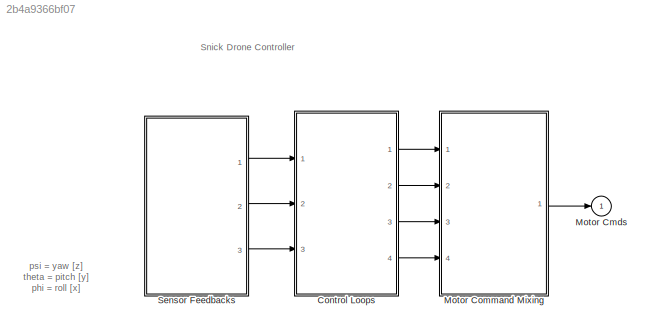
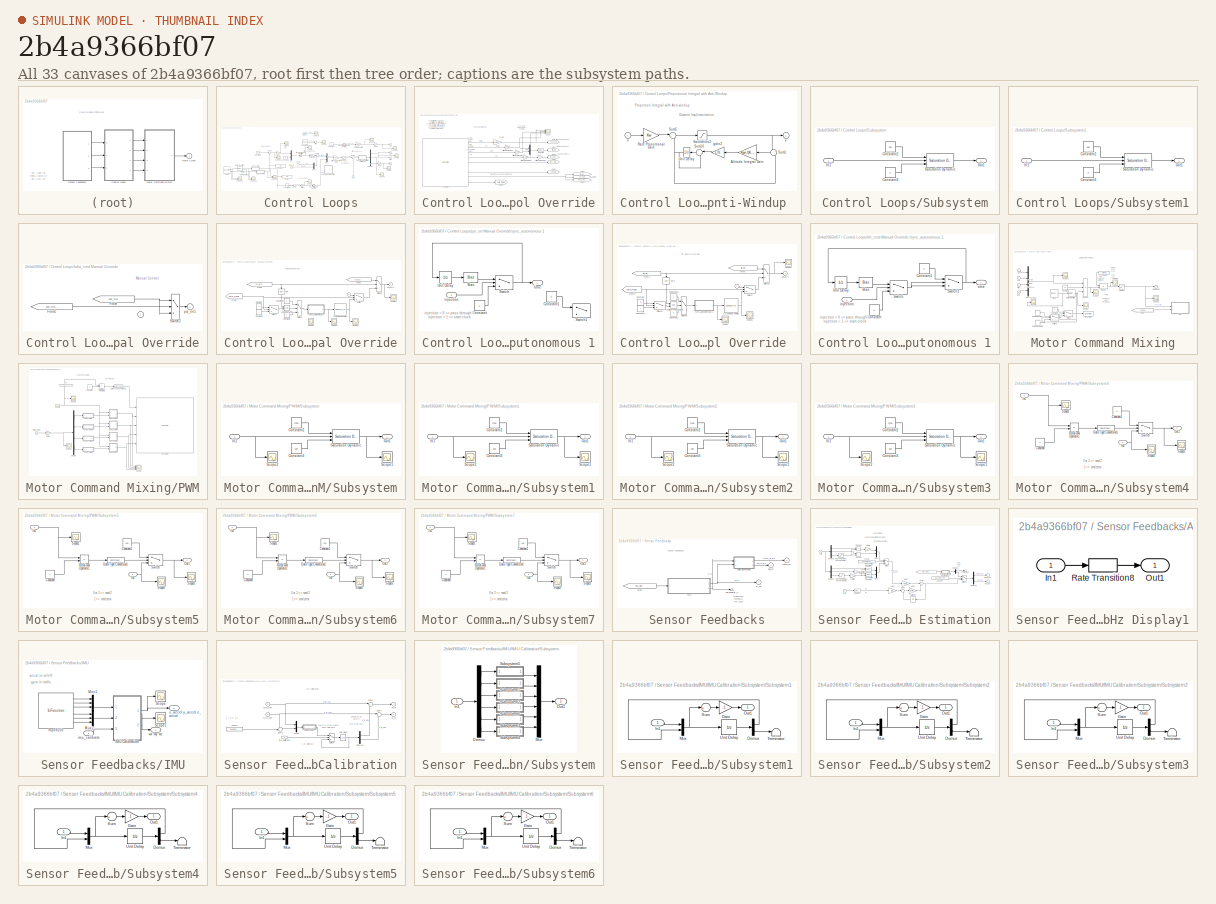
[diagram: thumbnail index - all 33 canvases of the model, root first then tree order]
MODEL slx_2b4a9366bf07
KIND model
CONFIG AbsTol = auto
CONFIG EnableMultiTasking = on
CONFIG FixedStep = 1/1000
CONFIG MaxStep = auto
CONFIG MinStep = auto
CONFIG RelTol = 1e-3
CONFIG SampleTimeConstraint = Unconstrained
CONFIG Solver = FixedStepAuto
CONFIG SolverName = FixedStepAuto
CONFIG StartTime = 0.0
CONFIG StopTime = inf
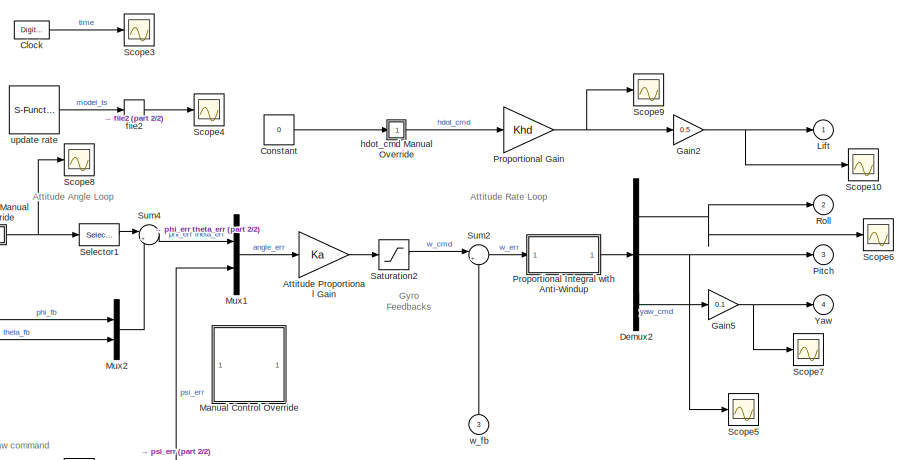
[diagram: Control Loops - part 1/2, right side, full height]
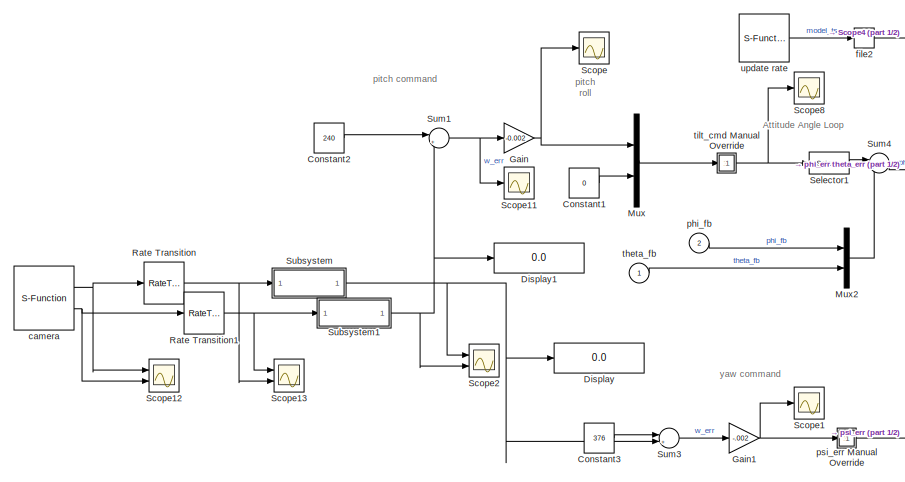
[diagram: Control Loops - part 2/2, left side, full height]
BLOCK [SubSystem] Control Loops
  Ports = [3, 4]
  RequestExecContextInheritance = off
BLOCK [Gain] Control Loops/Attitude Proportional Gain
  Gain = Ka
  OutDataTypeStr = Inherit: Inherit via internal rule
  ParamDataTypeStr = Inherit: Inherit via internal rule
  SaturateOnIntegerOverflow = off
BLOCK [DigitalClock] Control Loops/Clock
  SampleTime = 1/fs
BLOCK [Constant] Control Loops/Constant
  SampleTime = -1
  Value = 0
BLOCK [Constant] Control Loops/Constant1
  SampleTime = 1/fs
  Value = 0
BLOCK [Constant] Control Loops/Constant2
  SampleTime = 1/fs
  Value = 240
BLOCK [Constant] Control Loops/Constant3
  SampleTime = 1/fs
  Value = 376
BLOCK [Demux] Control Loops/Demux2
  AttributesFormatString = %<Outputs>
  DisplayOption = bar
  Outputs = 3
  Ports = [1, 3]
BLOCK [Display] Control Loops/Display
  Decimation = 1
  Ports = [1]
BLOCK [Display] Control Loops/Display1
  Decimation = 1
  Ports = [1]
BLOCK [Gain] Control Loops/Gain
  Gain = -0.002
  OutDataTypeStr = Inherit: Inherit via internal rule
  ParamDataTypeStr = Inherit: Inherit via internal rule
  SaturateOnIntegerOverflow = off
BLOCK [Gain] Control Loops/Gain1
  Gain = -.002
  OutDataTypeStr = Inherit: Inherit via internal rule
  ParamDataTypeStr = Inherit: Inherit via internal rule
  SaturateOnIntegerOverflow = off
BLOCK [Gain] Control Loops/Gain2
  Gain = 0.5
  OutDataTypeStr = Inherit: Inherit via internal rule
  ParamDataTypeStr = Inherit: Inherit via internal rule
  SaturateOnIntegerOverflow = off
BLOCK [Gain] Control Loops/Gain5
  Gain = 0.1
  OutDataTypeStr = Inherit: Inherit via internal rule
  ParamDataTypeStr = Inherit: Inherit via internal rule
  SaturateOnIntegerOverflow = off
BLOCK [Outport] Control Loops/Lift
  IconDisplay = Port number
BLOCK [SubSystem] Control Loops/Manual Control Override
  Ports = []
  RequestExecContextInheritance = off
BLOCK [Gain] Control Loops/Manual Control Override/Altitude Rate Gain1
  AttributesFormatString = %<Gain>
  Gain = 2
  OutDataTypeStr = Inherit: Inherit via internal rule
  ParamDataTypeStr = Inherit: Inherit via internal rule
  SaturateOnIntegerOverflow = off
BLOCK [Gain] Control Loops/Manual Control Override/Altitude Rate Gain2
  AttributesFormatString = %<Gain>
  Gain = 120*pi/180
  OutDataTypeStr = Inherit: Inherit via internal rule
  ParamDataTypeStr = Inherit: Inherit via internal rule
  SaturateOnIntegerOverflow = off
BLOCK [Gain] Control Loops/Manual Control Override/Altitude Rate Gain4
  AttributesFormatString = %<Gain>
  Gain = 120*pi/180
  OutDataTypeStr = Inherit: Inherit via internal rule
  ParamDataTypeStr = Inherit: Inherit via internal rule
  SaturateOnIntegerOverflow = off
BLOCK [Gain] Control Loops/Manual Control Override/Altitude Rate Gain5
  AttributesFormatString = %<Gain>
  Gain = 120*pi/180
  OutDataTypeStr = Inherit: Inherit via internal rule
  ParamDataTypeStr = Inherit: Inherit via internal rule
  SaturateOnIntegerOverflow = off
BLOCK [Gain] Control Loops/Manual Control Override/Gain
  Gain = 1/Khd
  OutDataTypeStr = Inherit: Inherit via internal rule
  ParamDataTypeStr = Inherit: Inherit via internal rule
  SaturateOnIntegerOverflow = off
BLOCK [Goto] Control Loops/Manual Control Override/Goto1
  GotoTag = auto_mode
  TagVisibility = global
BLOCK [Mux] Control Loops/Manual Control Override/Mux
  DisplayOption = bar
  Inputs = 2
  Ports = [2, 1]
BLOCK [Scope] Control Loops/Manual Control Override/Scope
  Floating = off
  NumInputPorts = 4
  Ports = [4]
  ScopeSpecificationString = Simulink.scopes.TimeScopeBlockCfg('CurrentConfiguration', extmgr.ConfigurationSet(extmgr.Configuration('Core','General UI',true),extmgr.Configuration('Core','Source UI',true),extmgr.Configuration('Sources','WiredSimulink',true,'DataLoggingVariableName','ScopeData1'),extmgr.Configuration('Visuals','Time Domain',true,'SerializedDisplays',{struct('MinYLimReal','-0.40203','MaxYLimReal','2.22747','YLab...<+1456ch>
BLOCK [Selector] Control Loops/Manual Control Override/Selector1
  AttributesFormatString = %<Indices>
  IndexOptions = Index vector (dialog)
  Indices = [2,1]
  InputPortWidth = 2
  OutputSizes = 1
  Ports = [1, 1]
BLOCK [Goto] Control Loops/Manual Control Override/goto
  GotoTag = hdot_cmd
  TagVisibility = global
BLOCK [Goto] Control Loops/Manual Control Override/goto1
  GotoTag = tilt_cmd
  TagVisibility = global
BLOCK [Goto] Control Loops/Manual Control Override/goto2
  GotoTag = psi_err_cmd
  TagVisibility = global
BLOCK [Goto] Control Loops/Manual Control Override/goto3
  GotoTag = hdot_cmd_manual
  TagVisibility = global
BLOCK [Goto] Control Loops/Manual Control Override/goto4
  GotoTag = tilt_cmd_manual
  TagVisibility = global
BLOCK [Goto] Control Loops/Manual Control Override/goto5
  GotoTag = psi_err_manual
  TagVisibility = global
BLOCK [Goto] Control Loops/Manual Control Override/goto6
  GotoTag = imu_calibrate
  TagVisibility = global
BLOCK [Goto] Control Loops/Manual Control Override/goto9
  GotoTag = enable
  TagVisibility = global
BLOCK [S-Function] Control Loops/Manual Control Override/spektrum
  EnableBusSupport = off
  FunctionName = spektrum
  Ports = [0, 9]
  SFcnIsStateOwnerBlock = off
  SFunctionDeploymentMode = off
BLOCK [Mux] Control Loops/Mux
  DisplayOption = bar
  Inputs = 2
  Ports = [2, 1]
BLOCK [Mux] Control Loops/Mux1
  AttributesFormatString = %<Inputs>
  DisplayOption = bar
  Inputs = [2 1]
  Ports = [2, 1]
BLOCK [Mux] Control Loops/Mux2
  AttributesFormatString = %<Inputs>
  DisplayOption = bar
  Inputs = 2
  Ports = [2, 1]
BLOCK [Outport] Control Loops/Pitch
  IconDisplay = Port number
  Port = 3
BLOCK [Gain] Control Loops/Proportional Gain
  Gain = Khd
  OutDataTypeStr = Inherit: Inherit via internal rule
  ParamDataTypeStr = Inherit: Inherit via internal rule
  SaturateOnIntegerOverflow = off
BLOCK [SubSystem] Control Loops/Proportional Integral with Anti-Windup 
  Ports = [1, 1]
  RequestExecContextInheritance = off
BLOCK [Gain] Control Loops/Proportional Integral with Anti-Windup /Altitude Integral Gain
  AttributesFormatString = %<Gain>
  Gain = Kwi./(Kw+(Kw==0))
  OutDataTypeStr = Inherit: Inherit via internal rule
  ParamDataTypeStr = Inherit: Inherit via internal rule
  SaturateOnIntegerOverflow = off
BLOCK [Gain] Control Loops/Proportional Integral with Anti-Windup /Rate Proportional Gain
  Gain = Kw
  OutDataTypeStr = Inherit: Inherit via internal rule
  ParamDataTypeStr = Inherit: Inherit via internal rule
  SaturateOnIntegerOverflow = off
BLOCK [Saturate] Control Loops/Proportional Integral with Anti-Windup /Saturation2
  AttributesFormatString = %<LowerLimit> to %<UpperLimit>
  InputPortMap = u0
  LowerLimit = -1
  Ports = [1, 1]
  UpperLimit = 1
BLOCK [Sum] Control Loops/Proportional Integral with Anti-Windup /Sum1
  IconShape = round
  Inputs = +|-
  Ports = [2, 1]
BLOCK [Sum] Control Loops/Proportional Integral with Anti-Windup /Sum10
  IconShape = round
  InputSameDT = off
  Inputs = |++
  OutDataTypeStr = Inherit: Inherit via internal rule
  Ports = [2, 1]
  SaturateOnIntegerOverflow = off
BLOCK [Sum] Control Loops/Proportional Integral with Anti-Windup /Sum5
  IconShape = round
  InputSameDT = off
  Inputs = |++
  OutDataTypeStr = Inherit: Inherit via internal rule
  Ports = [2, 1]
  SaturateOnIntegerOverflow = off
BLOCK [UnitDelay] Control Loops/Proportional Integral with Anti-Windup /Unit Delay
  AttributesFormatString = i.c.=%<X0>
  InputProcessing = Elements as channels (sample based)
  SampleTime = -1
BLOCK [Gain] Control Loops/Proportional Integral with Anti-Windup /gain2
  Gain = 1/fs
  OutDataTypeStr = Inherit: Inherit via internal rule
  ParamDataTypeStr = Inherit: Inherit via internal rule
  SaturateOnIntegerOverflow = off
BLOCK [Inport] Control Loops/Proportional Integral with Anti-Windup /u
  IconDisplay = Port number
BLOCK [Outport] Control Loops/Proportional Integral with Anti-Windup /y
  IconDisplay = Port number
BLOCK [RateTransition] Control Loops/Rate Transition
  OutPortSampleTime = 1/fs
BLOCK [RateTransition] Control Loops/Rate Transition1
  OutPortSampleTime = 1/fs
BLOCK [Outport] Control Loops/Roll
  IconDisplay = Port number
  Port = 2
BLOCK [Saturate] Control Loops/Saturation2
  AttributesFormatString = ±%<UpperLimit>
  InputPortMap = u0
  LowerLimit = -w_cmd_lim
  Ports = [1, 1]
  UpperLimit = w_cmd_lim
BLOCK [Scope] Control Loops/Scope
  Floating = off
  NumInputPorts = 1
  Ports = [1]
  ScopeSpecificationString = Simulink.scopes.TimeScopeBlockCfg('CurrentConfiguration', extmgr.ConfigurationSet(extmgr.Configuration('Core','General UI',true),extmgr.Configuration('Core','Source UI',true),extmgr.Configuration('Sources','WiredSimulink',true,'DataLoggingVariableName','ScopeData1'),extmgr.Configuration('Visuals','Time Domain',true,'SerializedDisplays',{struct('MinYLimReal','-0.368','MaxYLimReal','-0.168','YLabelR...<+1383ch>
BLOCK [Scope] Control Loops/Scope1
  Floating = off
  NumInputPorts = 1
  Ports = [1]
  ScopeSpecificationString = Simulink.scopes.TimeScopeBlockCfg('CurrentConfiguration', extmgr.ConfigurationSet(extmgr.Configuration('Core','General UI',true),extmgr.Configuration('Core','Source UI',true),extmgr.Configuration('Sources','WiredSimulink',true,'DataLoggingVariableName','ScopeData2'),extmgr.Configuration('Visuals','Time Domain',true,'SerializedDisplays',{struct('MinYLimReal','0.22275','MaxYLimReal','0.23525','YLabe...<+1391ch>
BLOCK [Scope] Control Loops/Scope10
  Floating = off
  NumInputPorts = 1
  Ports = [1]
  ScopeSpecificationString = Simulink.scopes.TimeScopeBlockCfg('CurrentConfiguration', extmgr.ConfigurationSet(extmgr.Configuration('Core','General UI',true),extmgr.Configuration('Core','Source UI',true),extmgr.Configuration('Sources','WiredSimulink',true,'DataLoggingVariableName','ScopeData2'),extmgr.Configuration('Visuals','Time Domain',true,'SerializedDisplays',{struct('MinYLimReal','0.04926','MaxYLimReal','0.04987','YLabe...<+1393ch>
BLOCK [Scope] Control Loops/Scope11
  Floating = off
  NumInputPorts = 1
  Ports = [1]
  ScopeSpecificationString = Simulink.scopes.TimeScopeBlockCfg('CurrentConfiguration', extmgr.ConfigurationSet(extmgr.Configuration('Core','General UI',true),extmgr.Configuration('Core','Source UI',true),extmgr.Configuration('Sources','WiredSimulink',true,'DataLoggingVariableName','ScopeData3'),extmgr.Configuration('Visuals','Time Domain',true,'SerializedDisplays',{struct('MinYLimReal','120.875','MaxYLimReal','122.125','YLabe...<+1389ch>
BLOCK [Scope] Control Loops/Scope12
  Floating = off
  NumInputPorts = 2
  Ports = [2]
  ScopeSpecificationString = Simulink.scopes.TimeScopeBlockCfg('CurrentConfiguration', extmgr.ConfigurationSet(extmgr.Configuration('Core','General UI',true),extmgr.Configuration('Core','Source UI',true),extmgr.Configuration('Sources','WiredSimulink',true,'DataLoggingVariableName','ScopeData5'),extmgr.Configuration('Visuals','Time Domain',true,'SerializedDisplays',{struct('MinYLimReal','71.75','MaxYLimReal','534.25','YLabelRe...<+1396ch>
BLOCK [Scope] Control Loops/Scope13
  Floating = off
  NumInputPorts = 2
  Ports = [2]
  ScopeSpecificationString = Simulink.scopes.TimeScopeBlockCfg('CurrentConfiguration', extmgr.ConfigurationSet(extmgr.Configuration('Core','General UI',true),extmgr.Configuration('Core','Source UI',true),extmgr.Configuration('Sources','WiredSimulink',true,'DataLoggingVariableName','ScopeData6'),extmgr.Configuration('Visuals','Time Domain',true,'SerializedDisplays',{struct('MinYLimReal','-1.00000','MaxYLimReal','1.00000','YLab...<+1411ch>
BLOCK [Scope] Control Loops/Scope2
  Floating = off
  NumInputPorts = 2
  Ports = [2]
  ScopeSpecificationString = Simulink.scopes.TimeScopeBlockCfg('CurrentConfiguration', extmgr.ConfigurationSet(extmgr.Configuration('Core','General UI',true),extmgr.Configuration('Core','Source UI',true),extmgr.Configuration('Sources','WiredSimulink',true,'DataLoggingVariableName','ScopeData1'),extmgr.Configuration('Visuals','Time Domain',true,'SerializedDisplays',{struct('MinYLimReal','-1.00000','MaxYLimReal','1.00000','YLab...<+1411ch>
BLOCK [Scope] Control Loops/Scope3
  Floating = off
  NumInputPorts = 1
  Ports = [1]
  ScopeSpecificationString = Simulink.scopes.TimeScopeBlockCfg('CurrentConfiguration', extmgr.ConfigurationSet(extmgr.Configuration('Core','General UI',true),extmgr.Configuration('Core','Source UI',true),extmgr.Configuration('Sources','WiredSimulink',true,'DataLoggingVariableName','ScopeData1'),extmgr.Configuration('Visuals','Time Domain',true,'SerializedDisplays',{struct('MinYLimReal','-1.00000','MaxYLimReal','1.00000','YLab...<+1391ch>
BLOCK [Scope] Control Loops/Scope4
  Floating = off
  NumInputPorts = 1
  Ports = [1]
  ScopeSpecificationString = Simulink.scopes.TimeScopeBlockCfg('CurrentConfiguration', extmgr.ConfigurationSet(extmgr.Configuration('Core','General UI',true),extmgr.Configuration('Core','Source UI',true),extmgr.Configuration('Sources','WiredSimulink',true,'DataLoggingVariableName','ScopeData2'),extmgr.Configuration('Visuals','Time Domain',true,'SerializedDisplays',{struct('MinYLimReal','0.00092','MaxYLimReal','0.00108','YLabe...<+1391ch>
BLOCK [Scope] Control Loops/Scope5
  Floating = off
  NumInputPorts = 1
  Ports = [1]
  ScopeSpecificationString = Simulink.scopes.TimeScopeBlockCfg('CurrentConfiguration', extmgr.ConfigurationSet(extmgr.Configuration('Core','General UI',true),extmgr.Configuration('Core','Source UI',true),extmgr.Configuration('Sources','WiredSimulink',true,'DataLoggingVariableName','ScopeData2'),extmgr.Configuration('Visuals','Time Domain',true,'SerializedDisplays',{struct('MinYLimReal','-0.0128','MaxYLimReal','0.06632','YLabe...<+1394ch>
BLOCK [Scope] Control Loops/Scope6
  Floating = off
  NumInputPorts = 1
  Ports = [1]
  ScopeSpecificationString = Simulink.scopes.TimeScopeBlockCfg('CurrentConfiguration', extmgr.ConfigurationSet(extmgr.Configuration('Core','General UI',true),extmgr.Configuration('Core','Source UI',true),extmgr.Configuration('Sources','WiredSimulink',true,'DataLoggingVariableName','ScopeData3'),extmgr.Configuration('Visuals','Time Domain',true,'SerializedDisplays',{struct('MinYLimReal','-0.01208','MaxYLimReal','0.00354','YLab...<+1397ch>
BLOCK [Scope] Control Loops/Scope7
  Floating = off
  NumInputPorts = 1
  Ports = [1]
  ScopeSpecificationString = Simulink.scopes.TimeScopeBlockCfg('CurrentConfiguration', extmgr.ConfigurationSet(extmgr.Configuration('Core','General UI',true),extmgr.Configuration('Core','Source UI',true),extmgr.Configuration('Sources','WiredSimulink',true,'DataLoggingVariableName','ScopeData4'),extmgr.Configuration('Visuals','Time Domain',true,'SerializedDisplays',{struct('MinYLimReal','-0.03824','MaxYLimReal','0.01494','YLab...<+1394ch>
BLOCK [Scope] Control Loops/Scope8
  Floating = off
  NumInputPorts = 1
  Ports = [1]
  ScopeSpecificationString = Simulink.scopes.TimeScopeBlockCfg('CurrentConfiguration', extmgr.ConfigurationSet(extmgr.Configuration('Core','General UI',true),extmgr.Configuration('Core','Source UI',true),extmgr.Configuration('Sources','WiredSimulink',true,'DataLoggingVariableName','ScopeData5'),extmgr.Configuration('Visuals','Time Domain',true,'SerializedDisplays',{struct('MinYLimReal','-0.08156','MaxYLimReal','0.32495','YLab...<+1450ch>
BLOCK [Scope] Control Loops/Scope9
  Floating = off
  NumInputPorts = 1
  Ports = [1]
  ScopeSpecificationString = Simulink.scopes.TimeScopeBlockCfg('CurrentConfiguration', extmgr.ConfigurationSet(extmgr.Configuration('Core','General UI',true),extmgr.Configuration('Core','Source UI',true),extmgr.Configuration('Sources','WiredSimulink',true,'DataLoggingVariableName','ScopeData1'),extmgr.Configuration('Visuals','Time Domain',true,'SerializedDisplays',{struct('MinYLimReal','0.00039','MaxYLimReal','0.00059','YLabe...<+1401ch>
BLOCK [Selector] Control Loops/Selector1
  AttributesFormatString = %<Indices>
  IndexOptions = Index vector (dialog)
  Indices = [2,1]
  InputPortWidth = 2
  OutputSizes = 1
  Ports = [1, 1]
BLOCK [SubSystem] Control Loops/Subsystem
  Ports = [1, 1]
  RequestExecContextInheritance = off
BLOCK [Constant] Control Loops/Subsystem/Constant2
  SampleTime = 1/fs
  Value = 752
BLOCK [Constant] Control Loops/Subsystem/Constant3
  SampleTime = 1/fs
  Value = 0
BLOCK [Inport] Control Loops/Subsystem/In1
  IconDisplay = Port number
BLOCK [Outport] Control Loops/Subsystem/Out1
  IconDisplay = Port number
BLOCK [Reference] Control Loops/Subsystem/Saturation Dynamic  REF=simulink/Discontinuities/Saturation
Dynamic
  Ports = [3, 1]
  SourceBlock = simulink/Discontinuities/Saturation\nDynamic
  SourceProductBaseCode = SL
  SourceProductName = Simulink
  SourceType = Saturation Dynamic
BLOCK [SubSystem] Control Loops/Subsystem1
  Ports = [1, 1]
  RequestExecContextInheritance = off
BLOCK [Constant] Control Loops/Subsystem1/Constant2
  SampleTime = 1/fs
  Value = 480
BLOCK [Constant] Control Loops/Subsystem1/Constant3
  SampleTime = 1/fs
  Value = 0
BLOCK [Inport] Control Loops/Subsystem1/In1
  IconDisplay = Port number
BLOCK [Outport] Control Loops/Subsystem1/Out1
  IconDisplay = Port number
BLOCK [Reference] Control Loops/Subsystem1/Saturation Dynamic  REF=simulink/Discontinuities/Saturation
Dynamic
  Ports = [3, 1]
  SourceBlock = simulink/Discontinuities/Saturation\nDynamic
  SourceProductBaseCode = SL
  SourceProductName = Simulink
  SourceType = Saturation Dynamic
BLOCK [Sum] Control Loops/Sum1
  IconShape = round
  InputSameDT = off
  Inputs = |+-
  OutDataTypeStr = Inherit: Inherit via internal rule
  Ports = [2, 1]
  SaturateOnIntegerOverflow = off
BLOCK [Sum] Control Loops/Sum2
  IconShape = round
  InputSameDT = off
  Inputs = |+-
  OutDataTypeStr = Inherit: Inherit via internal rule
  Ports = [2, 1]
  SaturateOnIntegerOverflow = off
BLOCK [Sum] Control Loops/Sum3
  IconShape = round
  InputSameDT = off
  Inputs = |+-
  OutDataTypeStr = Inherit: Inherit via internal rule
  Ports = [2, 1]
  SaturateOnIntegerOverflow = off
BLOCK [Sum] Control Loops/Sum4
  IconShape = round
  InputSameDT = off
  Inputs = |+-
  OutDataTypeStr = Inherit: Inherit via internal rule
  Ports = [2, 1]
  SaturateOnIntegerOverflow = off
BLOCK [Outport] Control Loops/Yaw
  IconDisplay = Port number
  Port = 4
BLOCK [S-Function] Control Loops/camera 
  EnableBusSupport = off
  FunctionName = mt9v034
  Ports = [0, 2]
  SFcnIsStateOwnerBlock = off
  SFunctionDeploymentMode = off
BLOCK [S-Function] Control Loops/file2
  EnableBusSupport = off
  FunctionName = arrayMex
  Parameters = param1
  Ports = [1, 1]
  SFcnIsStateOwnerBlock = off
  SFunctionDeploymentMode = off
BLOCK [SubSystem] Control Loops/hdot_cmd Manual Override
  Ports = [1, 1]
  RequestExecContextInheritance = off
BLOCK [Inport] Control Loops/hdot_cmd Manual Override/ 
  IconDisplay = Port number
BLOCK [From] Control Loops/hdot_cmd Manual Override/From
  GotoTag = hdot_cmd
  TagVisibility = global
BLOCK [From] Control Loops/hdot_cmd Manual Override/From1
  GotoTag = hdot_cmd_manual
  TagVisibility = global
BLOCK [Switch] Control Loops/hdot_cmd Manual Override/Switch2
  InputSameDT = off
  SaturateOnIntegerOverflow = off
  Threshold = 0.5
BLOCK [Outport] Control Loops/hdot_cmd Manual Override/psi_err1
  IconDisplay = Port number
BLOCK [Inport] Control Loops/phi_fb
  IconDisplay = Port number
  Port = 2
BLOCK [SubSystem] Control Loops/psi_err Manual Override
  Ports = [1, 1]
  RequestExecContextInheritance = off
BLOCK [Inport] Control Loops/psi_err Manual Override/ 
  IconDisplay = Port number
BLOCK [Lookup_n-D] Control Loops/psi_err Manual Override/1-D Lookup Table1
  BreakpointsForDimension1 = [0,3,6,9,12,15,18,21,24]
  ExtrapMethod = Cubic spline
  InternalRulePriority = Speed
  InterpMethod = Flat
  NumberOfTableDimensions = 1
  Ports = [1, 1]
  RndMeth = Simplest
  Table = [0,0,0,0,0,1.5708,0,-1.5708,0]
  UseLastTableValue = on
BLOCK [Constant] Control Loops/psi_err Manual Override/Constant
  SampleTime = -1
  Value = 0
BLOCK [Constant] Control Loops/psi_err Manual Override/Constant1
  SampleTime = -1
BLOCK [Constant] Control Loops/psi_err Manual Override/Constant2
  SampleTime = -1
  Value = 0
BLOCK [Constant] Control Loops/psi_err Manual Override/Constant3
  SampleTime = -1
BLOCK [From] Control Loops/psi_err Manual Override/From
  GotoTag = psi_err_cmd
  TagVisibility = global
BLOCK [From] Control Loops/psi_err Manual Override/From1
  GotoTag = psi_err_manual
  TagVisibility = global
BLOCK [From] Control Loops/psi_err Manual Override/From2
  GotoTag = auto_mode
  TagVisibility = global
BLOCK [Logic] Control Loops/psi_err Manual Override/Logical Operator
  AllPortsSameDT = off
  OutDataTypeStr = boolean
  Ports = [2, 1]
BLOCK [Logic] Control Loops/psi_err Manual Override/NOT
  AllPortsSameDT = off
  IconShape = distinctive
  Operator = NOT
  OutDataTypeStr = boolean
  Ports = [1, 1]
BLOCK [Scope] Control Loops/psi_err Manual Override/Scope1
  Floating = off
  NumInputPorts = 1
  Ports = [1]
  ScopeSpecificationString = Simulink.scopes.TimeScopeBlockCfg('CurrentConfiguration', extmgr.ConfigurationSet(extmgr.Configuration('Core','General UI',true),extmgr.Configuration('Core','Source UI',true),extmgr.Configuration('Sources','WiredSimulink',true,'DataLoggingVariableName','ScopeData2'),extmgr.Configuration('Visuals','Time Domain',true,'SerializedDisplays',{struct('MinYLimReal','-112.5','MaxYLimReal','112.5','YLabelRe...<+1398ch>
BLOCK [Scope] Control Loops/psi_err Manual Override/Scope2
  Floating = off
  NumInputPorts = 1
  Ports = [1]
  ScopeSpecificationString = Simulink.scopes.TimeScopeBlockCfg('CurrentConfiguration', extmgr.ConfigurationSet(extmgr.Configuration('Core','General UI',true),extmgr.Configuration('Core','Source UI',true),extmgr.Configuration('Sources','WiredSimulink',true,'DataLoggingVariableName','ScopeData3'),extmgr.Configuration('Visuals','Time Domain',true,'SerializedDisplays',{struct('MinYLimReal','-3.749','MaxYLimReal','33.751','YLabelR...<+1400ch>
BLOCK [Scope] Control Loops/psi_err Manual Override/Scope3
  Floating = off
  NumInputPorts = 1
  Ports = [1]
  ScopeSpecificationString = Simulink.scopes.TimeScopeBlockCfg('CurrentConfiguration', extmgr.ConfigurationSet(extmgr.Configuration('Core','General UI',true),extmgr.Configuration('Core','Source UI',true),extmgr.Configuration('Sources','WiredSimulink',true,'DataLoggingVariableName','ScopeData6'),extmgr.Configuration('Visuals','Time Domain',true,'SerializedDisplays',{struct('MinYLimReal','0.9','MaxYLimReal','1.1','YLabelReal','...<+1364ch>
BLOCK [Scope] Control Loops/psi_err Manual Override/Scope4
  Floating = off
  NumInputPorts = 1
  Ports = [1]
  ScopeSpecificationString = Simulink.scopes.TimeScopeBlockCfg('CurrentConfiguration', extmgr.ConfigurationSet(extmgr.Configuration('Core','General UI',true),extmgr.Configuration('Core','Source UI',true),extmgr.Configuration('Sources','WiredSimulink',true,'DataLoggingVariableName','ScopeData4'),extmgr.Configuration('Visuals','Time Domain',true,'SerializedDisplays',{struct('MinYLimReal','-0.24288','MaxYLimReal','-0.22754','YLa...<+1400ch>
BLOCK [Switch] Control Loops/psi_err Manual Override/Switch
  Criteria = u2 ~= 0
  InputSameDT = off
  SaturateOnIntegerOverflow = off
BLOCK [Switch] Control Loops/psi_err Manual Override/Switch1
  Criteria = u2 ~= 0
  InputSameDT = off
  SaturateOnIntegerOverflow = off
BLOCK [Switch] Control Loops/psi_err Manual Override/Switch2
  InputSameDT = off
  SaturateOnIntegerOverflow = off
  Threshold = 0.5
BLOCK [Switch] Control Loops/psi_err Manual Override/Switch4
  InputSameDT = off
  SaturateOnIntegerOverflow = off
  Threshold = 0.5
BLOCK [Outport] Control Loops/psi_err Manual Override/psi_err1
  IconDisplay = Port number
BLOCK [SubSystem] Control Loops/psi_err Manual Override/sync_autonomous 1
  Ports = [1, 1]
  RequestExecContextInheritance = off
BLOCK [Bias] Control Loops/psi_err Manual Override/sync_autonomous 1/Bias
  Bias = 0.001
  SaturateOnIntegerOverflow = off
BLOCK [Constant] Control Loops/psi_err Manual Override/sync_autonomous 1/Constant
  SampleTime = -1
  Value = 0
BLOCK [Constant] Control Loops/psi_err Manual Override/sync_autonomous 1/Constant1
  Commented = on
  SampleTime = -1
  Value = 0
BLOCK [Switch] Control Loops/psi_err Manual Override/sync_autonomous 1/Switch
  Criteria = u2 ~= 0
  InputSameDT = off
  SaturateOnIntegerOverflow = off
BLOCK [Switch] Control Loops/psi_err Manual Override/sync_autonomous 1/Switch1
  Commented = on
  Criteria = u2 > Threshold
  InputSameDT = off
  SaturateOnIntegerOverflow = off
  Threshold = 25
BLOCK [UnitDelay] Control Loops/psi_err Manual Override/sync_autonomous 1/Unit Delay
  InputProcessing = Elements as channels (sample based)
  SampleTime = -1
BLOCK [Inport] Control Loops/psi_err Manual Override/sync_autonomous 1/injection 
  IconDisplay = Port number
BLOCK [Outport] Control Loops/psi_err Manual Override/sync_autonomous 1/time 
  IconDisplay = Port number
BLOCK [Inport] Control Loops/theta_fb
  IconDisplay = Port number
BLOCK [SubSystem] Control Loops/tilt_cmd Manual Override 
  Ports = [1, 1]
  RequestExecContextInheritance = off
BLOCK [Inport] Control Loops/tilt_cmd Manual Override / 
  IconDisplay = Port number
BLOCK [Lookup_n-D] Control Loops/tilt_cmd Manual Override /1-D Lookup Table2
  BreakpointsForDimension1 = [0,3,6,9,12,15,18,21,24]
  InternalRulePriority = Speed
  InterpMethod = Flat
  NumberOfTableDimensions = 1
  Ports = [1, 1]
  RndMeth = Simplest
  Table = [0,0.523599,0,-0.523599,0,0,0,0,0]
BLOCK [Constant] Control Loops/tilt_cmd Manual Override /Constant
  SampleTime = -1
  Value = 0
BLOCK [Constant] Control Loops/tilt_cmd Manual Override /Constant1
  SampleTime = -1
BLOCK [Constant] Control Loops/tilt_cmd Manual Override /Constant2
  SampleTime = -1
  Value = 0
BLOCK [Constant] Control Loops/tilt_cmd Manual Override /Constant3
  SampleTime = -1
BLOCK [From] Control Loops/tilt_cmd Manual Override /From
  GotoTag = tilt_cmd
  TagVisibility = global
BLOCK [From] Control Loops/tilt_cmd Manual Override /From1
  GotoTag = tilt_cmd_manual
  TagVisibility = global
BLOCK [From] Control Loops/tilt_cmd Manual Override /From2
  GotoTag = auto_mode
  TagVisibility = global
BLOCK [Logic] Control Loops/tilt_cmd Manual Override /Logical Operator
  AllPortsSameDT = off
  OutDataTypeStr = boolean
  Ports = [2, 1]
BLOCK [Logic] Control Loops/tilt_cmd Manual Override /NOT
  AllPortsSameDT = off
  IconShape = distinctive
  Operator = NOT
  OutDataTypeStr = boolean
  Ports = [1, 1]
BLOCK [Scope] Control Loops/tilt_cmd Manual Override /Scope1
  Floating = off
  NumInputPorts = 1
  Ports = [1]
  ScopeSpecificationString = Simulink.scopes.TimeScopeBlockCfg('CurrentConfiguration', extmgr.ConfigurationSet(extmgr.Configuration('Core','General UI',true),extmgr.Configuration('Core','Source UI',true),extmgr.Configuration('Sources','WiredSimulink',true,'DataLoggingVariableName','ScopeData1'),extmgr.Configuration('Visuals','Time Domain',true,'SerializedDisplays',{struct('MinYLimReal','-37.5','MaxYLimReal','37.5','YLabelReal...<+1385ch>
BLOCK [Scope] Control Loops/tilt_cmd Manual Override /Scope2
  Floating = off
  NumInputPorts = 1
  Ports = [1]
  ScopeSpecificationString = Simulink.scopes.TimeScopeBlockCfg('CurrentConfiguration', extmgr.ConfigurationSet(extmgr.Configuration('Core','General UI',true),extmgr.Configuration('Core','Source UI',true),extmgr.Configuration('Sources','WiredSimulink',true,'DataLoggingVariableName','ScopeData4'),extmgr.Configuration('Visuals','Time Domain',true,'SerializedDisplays',{struct('MinYLimReal','-3.12488','MaxYLimReal','28.12388','YLa...<+1411ch>
BLOCK [Scope] Control Loops/tilt_cmd Manual Override /Scope3
  Floating = off
  NumInputPorts = 1
  Ports = [1]
  ScopeSpecificationString = Simulink.scopes.TimeScopeBlockCfg('CurrentConfiguration', extmgr.ConfigurationSet(extmgr.Configuration('Core','General UI',true),extmgr.Configuration('Core','Source UI',true),extmgr.Configuration('Sources','WiredSimulink',true,'DataLoggingVariableName','ScopeData6'),extmgr.Configuration('Visuals','Time Domain',true,'SerializedDisplays',{struct('MinYLimReal','-0.08156','MaxYLimReal','0.32495','YLab...<+1412ch>
BLOCK [Switch] Control Loops/tilt_cmd Manual Override /Switch
  Criteria = u2 ~= 0
  InputSameDT = off
  SaturateOnIntegerOverflow = off
BLOCK [Switch] Control Loops/tilt_cmd Manual Override /Switch1
  Criteria = u2 ~= 0
  InputSameDT = off
  SaturateOnIntegerOverflow = off
BLOCK [Switch] Control Loops/tilt_cmd Manual Override /Switch2
  InputSameDT = off
  SaturateOnIntegerOverflow = off
  Threshold = 0.5
BLOCK [Switch] Control Loops/tilt_cmd Manual Override /Switch3
  InputSameDT = off
  SaturateOnIntegerOverflow = off
  Threshold = 0.5
BLOCK [Outport] Control Loops/tilt_cmd Manual Override /psi_err1
  IconDisplay = Port number
BLOCK [SubSystem] Control Loops/tilt_cmd Manual Override /sync_autonomous 1
  Ports = [1, 1]
  RequestExecContextInheritance = off
BLOCK [Bias] Control Loops/tilt_cmd Manual Override /sync_autonomous 1/Bias
  Bias = 0.001
  SaturateOnIntegerOverflow = off
BLOCK [Constant] Control Loops/tilt_cmd Manual Override /sync_autonomous 1/Constant
  SampleTime = -1
  Value = 0
BLOCK [Constant] Control Loops/tilt_cmd Manual Override /sync_autonomous 1/Constant1
  SampleTime = -1
  Value = 0
BLOCK [Switch] Control Loops/tilt_cmd Manual Override /sync_autonomous 1/Switch
  Criteria = u2 ~= 0
  InputSameDT = off
  SaturateOnIntegerOverflow = off
BLOCK [Switch] Control Loops/tilt_cmd Manual Override /sync_autonomous 1/Switch1
  Criteria = u2 > Threshold
  InputSameDT = off
  SaturateOnIntegerOverflow = off
  Threshold = 25
BLOCK [UnitDelay] Control Loops/tilt_cmd Manual Override /sync_autonomous 1/Unit Delay
  InputProcessing = Elements as channels (sample based)
  SampleTime = -1
BLOCK [Inport] Control Loops/tilt_cmd Manual Override /sync_autonomous 1/injection 
  IconDisplay = Port number
BLOCK [Outport] Control Loops/tilt_cmd Manual Override /sync_autonomous 1/time 
  IconDisplay = Port number
BLOCK [S-Function] Control Loops/update rate
  EnableBusSupport = off
  FunctionName = updateRate
  Ports = [0, 1]
  SFcnIsStateOwnerBlock = off
  SFunctionDeploymentMode = off
BLOCK [Inport] Control Loops/w_fb
  IconDisplay = Port number
  Port = 3
BLOCK [Outport] Motor Cmds
  IconDisplay = Port number
BLOCK [SubSystem] Motor Command Mixing
  Ports = [4, 1]
  RequestExecContextInheritance = off
BLOCK [Constant] Motor Command Mixing/Constant
  SampleTime = 1/fs
  Value = 7.4
BLOCK [Constant] Motor Command Mixing/Constant1
  SampleTime = 1/fs
BLOCK [From] Motor Command Mixing/From
  GotoTag = enable
  TagVisibility = global
BLOCK [Inport] Motor Command Mixing/Lift
  IconDisplay = Port number
BLOCK [Outport] Motor Command Mixing/Motor Cmds
  IconDisplay = Port number
BLOCK [Mux] Motor Command Mixing/Mux4
  AttributesFormatString = %<Inputs>
  DisplayOption = bar
  Ports = [4, 1]
BLOCK [SubSystem] Motor Command Mixing/PWM
  Ports = [2]
  RequestExecContextInheritance = off
BLOCK [Constant] Motor Command Mixing/PWM/Constant
  SampleTime = 1/fs
  Value = 0
BLOCK [DataTypeConversion] Motor Command Mixing/PWM/Data Type Conversion1
  OutDataTypeStr = double
  RndMeth = Floor
  SaturateOnIntegerOverflow = off
BLOCK [Demux] Motor Command Mixing/PWM/Demux
  DisplayOption = bar
  Ports = [1, 4]
BLOCK [Gain] Motor Command Mixing/PWM/Gain5
  Gain = 4000
  OutDataTypeStr = Inherit: Inherit via internal rule
  ParamDataTypeStr = Inherit: Inherit via internal rule
  SaturateOnIntegerOverflow = off
BLOCK [RelationalOperator] Motor Command Mixing/PWM/Relational Operator1
  InputSameDT = off
  Operator = >
  Ports = [2, 1]
  RndMeth = Simplest
BLOCK [S-Function] Motor Command Mixing/PWM/S-Function
  EnableBusSupport = off
  FunctionName = pwmDK
  Ports = [5, 5]
  SFcnIsStateOwnerBlock = off
  SFunctionDeploymentMode = off
BLOCK [Scope] Motor Command Mixing/PWM/Scope
  Floating = off
  NumInputPorts = 4
  Ports = [4]
  ScopeSpecificationString = Simulink.scopes.TimeScopeBlockCfg('CurrentConfiguration', extmgr.ConfigurationSet(extmgr.Configuration('Core','General UI',true),extmgr.Configuration('Core','Source UI',true),extmgr.Configuration('Sources','WiredSimulink',true,'DataLoggingVariableName','ScopeData1'),extmgr.Configuration('Visuals','Time Domain',true,'SerializedDisplays',{struct('MinYLimReal','81.68737','MaxYLimReal','264.81368','YL...<+1471ch>
BLOCK [Scope] Motor Command Mixing/PWM/Scope1
  Floating = off
  NumInputPorts = 1
  Ports = [1]
  ScopeSpecificationString = Simulink.scopes.TimeScopeBlockCfg('CurrentConfiguration', extmgr.ConfigurationSet(extmgr.Configuration('Core','General UI',true),extmgr.Configuration('Core','Source UI',true),extmgr.Configuration('Sources','WiredSimulink',true,'DataLoggingVariableName','ScopeData9'),extmgr.Configuration('Visuals','Time Domain',true,'SerializedDisplays',{struct('MinYLimReal','139.60239','MaxYLimReal','1633.72696','...<+1443ch>
BLOCK [Scope] Motor Command Mixing/PWM/Scope2
  Floating = off
  NumInputPorts = 1
  Ports = [1]
  ScopeSpecificationString = Simulink.scopes.TimeScopeBlockCfg('CurrentConfiguration', extmgr.ConfigurationSet(extmgr.Configuration('Core','General UI',true),extmgr.Configuration('Core','Source UI',true),extmgr.Configuration('Sources','WiredSimulink',true,'DataLoggingVariableName','ScopeData3'),extmgr.Configuration('Visuals','Time Domain',true,'SerializedDisplays',{struct('MinYLimReal','0.9','MaxYLimReal','1.1','YLabelReal','...<+1361ch>
BLOCK [SubSystem] Motor Command Mixing/PWM/Subsystem
  Ports = [1, 1]
  RequestExecContextInheritance = off
BLOCK [Constant] Motor Command Mixing/PWM/Subsystem/Constant2
  SampleTime = 1/fs
  Value = 1700
BLOCK [Constant] Motor Command Mixing/PWM/Subsystem/Constant3
  SampleTime = 1/fs
  Value = 100
BLOCK [Inport] Motor Command Mixing/PWM/Subsystem/In1
  IconDisplay = Port number
BLOCK [Outport] Motor Command Mixing/PWM/Subsystem/Out1
  IconDisplay = Port number
BLOCK [Reference] Motor Command Mixing/PWM/Subsystem/Saturation Dynamic  REF=simulink/Discontinuities/Saturation
Dynamic
  Ports = [3, 1]
  SourceBlock = simulink/Discontinuities/Saturation\nDynamic
  SourceProductBaseCode = SL
  SourceProductName = Simulink
  SourceType = Saturation Dynamic
BLOCK [Scope] Motor Command Mixing/PWM/Subsystem/Scope1
  Floating = off
  NumInputPorts = 1
  Ports = [1]
  ScopeSpecificationString = Simulink.scopes.TimeScopeBlockCfg('CurrentConfiguration', extmgr.ConfigurationSet(extmgr.Configuration('Core','General UI',true),extmgr.Configuration('Core','Source UI',true),extmgr.Configuration('Sources','WiredSimulink',true,'DataLoggingVariableName','ScopeData8'),extmgr.Configuration('Visuals','Time Domain',true,'SerializedDisplays',{struct('MinYLimReal','43000.00000','MaxYLimReal','63000.00000...<+1434ch>  <repeated x4 — deduplicated; at blocks: Scope1>
BLOCK [Scope] Motor Command Mixing/PWM/Subsystem/Scope2
  Floating = off
  NumInputPorts = 1
  Ports = [1]
  ScopeSpecificationString = Simulink.scopes.TimeScopeBlockCfg('CurrentConfiguration', extmgr.ConfigurationSet(extmgr.Configuration('Core','General UI',true),extmgr.Configuration('Core','Source UI',true),extmgr.Configuration('Sources','WiredSimulink',true,'DataLoggingVariableName','ScopeData7'),extmgr.Configuration('Visuals','Time Domain',true,'SerializedDisplays',{struct('MinYLimReal','-0.00000000000000000001','MaxYLimReal',...<+1514ch>  <repeated x4 — deduplicated; at blocks: Scope2>
BLOCK [SubSystem] Motor Command Mixing/PWM/Subsystem1
  Ports = [1, 1]
  RequestExecContextInheritance = off
BLOCK [Constant] Motor Command Mixing/PWM/Subsystem1/Constant2
  SampleTime = 1/fs
  Value = 1700
BLOCK [Constant] Motor Command Mixing/PWM/Subsystem1/Constant3
  SampleTime = 1/fs
  Value = 100
BLOCK [Inport] Motor Command Mixing/PWM/Subsystem1/In1
  IconDisplay = Port number
BLOCK [Outport] Motor Command Mixing/PWM/Subsystem1/Out1
  IconDisplay = Port number
BLOCK [Reference] Motor Command Mixing/PWM/Subsystem1/Saturation Dynamic  REF=simulink/Discontinuities/Saturation
Dynamic
  Ports = [3, 1]
  SourceBlock = simulink/Discontinuities/Saturation\nDynamic
  SourceProductBaseCode = SL
  SourceProductName = Simulink
  SourceType = Saturation Dynamic
BLOCK [Scope] Motor Command Mixing/PWM/Subsystem1/Scope1
  Floating = off
  NumInputPorts = 1
  Ports = [1]
BLOCK [Scope] Motor Command Mixing/PWM/Subsystem1/Scope2
  Floating = off
  NumInputPorts = 1
  Ports = [1]
BLOCK [SubSystem] Motor Command Mixing/PWM/Subsystem2
  Ports = [1, 1]
  RequestExecContextInheritance = off
BLOCK [Constant] Motor Command Mixing/PWM/Subsystem2/Constant2
  SampleTime = 1/fs
  Value = 1700
BLOCK [Constant] Motor Command Mixing/PWM/Subsystem2/Constant3
  SampleTime = 1/fs
  Value = 100
BLOCK [Inport] Motor Command Mixing/PWM/Subsystem2/In1
  IconDisplay = Port number
BLOCK [Outport] Motor Command Mixing/PWM/Subsystem2/Out1
  IconDisplay = Port number
BLOCK [Reference] Motor Command Mixing/PWM/Subsystem2/Saturation Dynamic  REF=simulink/Discontinuities/Saturation
Dynamic
  Ports = [3, 1]
  SourceBlock = simulink/Discontinuities/Saturation\nDynamic
  SourceProductBaseCode = SL
  SourceProductName = Simulink
  SourceType = Saturation Dynamic
BLOCK [Scope] Motor Command Mixing/PWM/Subsystem2/Scope1
  Floating = off
  NumInputPorts = 1
  Ports = [1]
BLOCK [Scope] Motor Command Mixing/PWM/Subsystem2/Scope2
  Floating = off
  NumInputPorts = 1
  Ports = [1]
BLOCK [SubSystem] Motor Command Mixing/PWM/Subsystem3
  Ports = [1, 1]
  RequestExecContextInheritance = off
BLOCK [Constant] Motor Command Mixing/PWM/Subsystem3/Constant2
  SampleTime = 1/fs
  Value = 1700
BLOCK [Constant] Motor Command Mixing/PWM/Subsystem3/Constant3
  SampleTime = 1/fs
  Value = 100
BLOCK [Inport] Motor Command Mixing/PWM/Subsystem3/In1
  IconDisplay = Port number
BLOCK [Outport] Motor Command Mixing/PWM/Subsystem3/Out1
  IconDisplay = Port number
BLOCK [Reference] Motor Command Mixing/PWM/Subsystem3/Saturation Dynamic  REF=simulink/Discontinuities/Saturation
Dynamic
  Ports = [3, 1]
  SourceBlock = simulink/Discontinuities/Saturation\nDynamic
  SourceProductBaseCode = SL
  SourceProductName = Simulink
  SourceType = Saturation Dynamic
BLOCK [Scope] Motor Command Mixing/PWM/Subsystem3/Scope1
  Floating = off
  NumInputPorts = 1
  Ports = [1]
BLOCK [Scope] Motor Command Mixing/PWM/Subsystem3/Scope2
  Floating = off
  NumInputPorts = 1
  Ports = [1]
BLOCK [SubSystem] Motor Command Mixing/PWM/Subsystem4
  Ports = [2, 1]
  RequestExecContextInheritance = off
BLOCK [Constant] Motor Command Mixing/PWM/Subsystem4/Constant
  SampleTime = 1/fs
BLOCK [Constant] Motor Command Mixing/PWM/Subsystem4/Constant1
  SampleTime = 1/fs
  Value = 0
BLOCK [DataTypeConversion] Motor Command Mixing/PWM/Subsystem4/Data Type Conversion1
  OutDataTypeStr = double
  RndMeth = Floor
  SaturateOnIntegerOverflow = off
BLOCK [Inport] Motor Command Mixing/PWM/Subsystem4/In1
  IconDisplay = Port number
BLOCK [Inport] Motor Command Mixing/PWM/Subsystem4/In2
  IconDisplay = Port number
  Port = 2
BLOCK [Outport] Motor Command Mixing/PWM/Subsystem4/Out1
  IconDisplay = Port number
BLOCK [RelationalOperator] Motor Command Mixing/PWM/Subsystem4/Relational Operator1
  InputSameDT = off
  Operator = ==
  Ports = [2, 1]
  RndMeth = Simplest
BLOCK [Scope] Motor Command Mixing/PWM/Subsystem4/Scope1
  Floating = off
  NumInputPorts = 1
  Ports = [1]
  ScopeSpecificationString = Simulink.scopes.TimeScopeBlockCfg('CurrentConfiguration', extmgr.ConfigurationSet(extmgr.Configuration('Core','General UI',true),extmgr.Configuration('Core','Source UI',true),extmgr.Configuration('Sources','WiredSimulink',true,'DataLoggingVariableName','ScopeData5'),extmgr.Configuration('Visuals','Time Domain',true,'SerializedDisplays',{struct('MinYLimReal','0.9','MaxYLimReal','1.1','YLabelReal','...<+1360ch>  <repeated x4 — deduplicated; at blocks: Scope1>
BLOCK [Scope] Motor Command Mixing/PWM/Subsystem4/Scope2
  Floating = off
  NumInputPorts = 1
  Ports = [1]
  ScopeSpecificationString = Simulink.scopes.TimeScopeBlockCfg('CurrentConfiguration', extmgr.ConfigurationSet(extmgr.Configuration('Core','General UI',true),extmgr.Configuration('Core','Source UI',true),extmgr.Configuration('Sources','WiredSimulink',true,'DataLoggingVariableName','ScopeData4'),extmgr.Configuration('Visuals','Time Domain',true,'SerializedDisplays',{struct('MinYLimReal','43000.00000','MaxYLimReal','63000.00000...<+1422ch>  <repeated x4 — deduplicated; at blocks: Scope2>
BLOCK [Scope] Motor Command Mixing/PWM/Subsystem4/Scope3
  Floating = off
  NumInputPorts = 1
  Ports = [1]
  ScopeSpecificationString = Simulink.scopes.TimeScopeBlockCfg('CurrentConfiguration', extmgr.ConfigurationSet(extmgr.Configuration('Core','General UI',true),extmgr.Configuration('Core','Source UI',true),extmgr.Configuration('Sources','WiredSimulink',true,'DataLoggingVariableName','ScopeData6'),extmgr.Configuration('Visuals','Time Domain',true,'SerializedDisplays',{struct('MinYLimReal','40000.00000','MaxYLimReal','60000.00000...<+1425ch>  <repeated x4 — deduplicated; at blocks: Scope3>
BLOCK [Switch] Motor Command Mixing/PWM/Subsystem4/Switch
  Criteria = u2 ~= 0
  InputSameDT = off
  SaturateOnIntegerOverflow = off
  Threshold = 1
BLOCK [SubSystem] Motor Command Mixing/PWM/Subsystem5
  Ports = [2, 1]
  RequestExecContextInheritance = off
BLOCK [Constant] Motor Command Mixing/PWM/Subsystem5/Constant
  SampleTime = 1/fs
BLOCK [Constant] Motor Command Mixing/PWM/Subsystem5/Constant1
  SampleTime = 1/fs
  Value = 100
BLOCK [DataTypeConversion] Motor Command Mixing/PWM/Subsystem5/Data Type Conversion1
  OutDataTypeStr = double
  RndMeth = Floor
  SaturateOnIntegerOverflow = off
BLOCK [Inport] Motor Command Mixing/PWM/Subsystem5/In1
  IconDisplay = Port number
BLOCK [Inport] Motor Command Mixing/PWM/Subsystem5/In2
  IconDisplay = Port number
  Port = 2
BLOCK [Outport] Motor Command Mixing/PWM/Subsystem5/Out1
  IconDisplay = Port number
BLOCK [RelationalOperator] Motor Command Mixing/PWM/Subsystem5/Relational Operator1
  InputSameDT = off
  Operator = ==
  Ports = [2, 1]
  RndMeth = Simplest
BLOCK [Scope] Motor Command Mixing/PWM/Subsystem5/Scope1
  Floating = off
  NumInputPorts = 1
  Ports = [1]
BLOCK [Scope] Motor Command Mixing/PWM/Subsystem5/Scope2
  Floating = off
  NumInputPorts = 1
  Ports = [1]
BLOCK [Scope] Motor Command Mixing/PWM/Subsystem5/Scope3
  Floating = off
  NumInputPorts = 1
  Ports = [1]
BLOCK [Switch] Motor Command Mixing/PWM/Subsystem5/Switch
  Criteria = u2 ~= 0
  InputSameDT = off
  SaturateOnIntegerOverflow = off
  Threshold = 1
BLOCK [SubSystem] Motor Command Mixing/PWM/Subsystem6
  Ports = [2, 1]
  RequestExecContextInheritance = off
BLOCK [Constant] Motor Command Mixing/PWM/Subsystem6/Constant
  SampleTime = 1/fs
BLOCK [Constant] Motor Command Mixing/PWM/Subsystem6/Constant1
  SampleTime = 1/fs
  Value = 100
BLOCK [DataTypeConversion] Motor Command Mixing/PWM/Subsystem6/Data Type Conversion1
  OutDataTypeStr = double
  RndMeth = Floor
  SaturateOnIntegerOverflow = off
BLOCK [Inport] Motor Command Mixing/PWM/Subsystem6/In1
  IconDisplay = Port number
BLOCK [Inport] Motor Command Mixing/PWM/Subsystem6/In2
  IconDisplay = Port number
  Port = 2
BLOCK [Outport] Motor Command Mixing/PWM/Subsystem6/Out1
  IconDisplay = Port number
BLOCK [RelationalOperator] Motor Command Mixing/PWM/Subsystem6/Relational Operator1
  InputSameDT = off
  Operator = ==
  Ports = [2, 1]
  RndMeth = Simplest
BLOCK [Scope] Motor Command Mixing/PWM/Subsystem6/Scope1
  Floating = off
  NumInputPorts = 1
  Ports = [1]
BLOCK [Scope] Motor Command Mixing/PWM/Subsystem6/Scope2
  Floating = off
  NumInputPorts = 1
  Ports = [1]
BLOCK [Scope] Motor Command Mixing/PWM/Subsystem6/Scope3
  Floating = off
  NumInputPorts = 1
  Ports = [1]
BLOCK [Switch] Motor Command Mixing/PWM/Subsystem6/Switch
  Criteria = u2 ~= 0
  InputSameDT = off
  SaturateOnIntegerOverflow = off
  Threshold = 1
BLOCK [SubSystem] Motor Command Mixing/PWM/Subsystem7
  Ports = [2, 1]
  RequestExecContextInheritance = off
BLOCK [Constant] Motor Command Mixing/PWM/Subsystem7/Constant
  SampleTime = 1/fs
BLOCK [Constant] Motor Command Mixing/PWM/Subsystem7/Constant1
  SampleTime = 1/fs
  Value = 100
BLOCK [DataTypeConversion] Motor Command Mixing/PWM/Subsystem7/Data Type Conversion1
  OutDataTypeStr = double
  RndMeth = Floor
  SaturateOnIntegerOverflow = off
BLOCK [Inport] Motor Command Mixing/PWM/Subsystem7/In1
  IconDisplay = Port number
BLOCK [Inport] Motor Command Mixing/PWM/Subsystem7/In2
  IconDisplay = Port number
  Port = 2
BLOCK [Outport] Motor Command Mixing/PWM/Subsystem7/Out1
  IconDisplay = Port number
BLOCK [RelationalOperator] Motor Command Mixing/PWM/Subsystem7/Relational Operator1
  InputSameDT = off
  Operator = ==
  Ports = [2, 1]
  RndMeth = Simplest
BLOCK [Scope] Motor Command Mixing/PWM/Subsystem7/Scope1
  Floating = off
  NumInputPorts = 1
  Ports = [1]
BLOCK [Scope] Motor Command Mixing/PWM/Subsystem7/Scope2
  Floating = off
  NumInputPorts = 1
  Ports = [1]
BLOCK [Scope] Motor Command Mixing/PWM/Subsystem7/Scope3
  Floating = off
  NumInputPorts = 1
  Ports = [1]
BLOCK [Switch] Motor Command Mixing/PWM/Subsystem7/Switch
  Criteria = u2 ~= 0
  InputSameDT = off
  SaturateOnIntegerOverflow = off
  Threshold = 1
BLOCK [Inport] Motor Command Mixing/PWM/enable
  IconDisplay = Port number
  Port = 2
BLOCK [Inport] Motor Command Mixing/PWM/motor_cmds
  IconDisplay = Port number
BLOCK [Inport] Motor Command Mixing/Pitch
  IconDisplay = Port number
  Port = 3
BLOCK [Product] Motor Command Mixing/Product
  InputSameDT = off
  Multiplication = Matrix(*)
  OutDataTypeStr = Inherit: Inherit via internal rule
  Ports = [2, 1]
  SaturateOnIntegerOverflow = off
BLOCK [Product] Motor Command Mixing/Product1
  InputSameDT = off
  Inputs = **/
  OutDataTypeStr = Inherit: Inherit via internal rule
  Ports = [3, 1]
  RndMeth = Floor
  SaturateOnIntegerOverflow = off
BLOCK [DiscretePulseGenerator] Motor Command Mixing/Pulse Generator
  Period = 1
  Ports = [0, 1]
  PulseType = Time based
  PulseWidth = 50
BLOCK [DiscretePulseGenerator] Motor Command Mixing/Pulse Generator1
  Period = 0.2
  Ports = [0, 1]
  PulseType = Time based
  PulseWidth = 50
BLOCK [RateTransition] Motor Command Mixing/Rate Transition
  OutPortSampleTime = 1/fs
BLOCK [Inport] Motor Command Mixing/Roll
  IconDisplay = Port number
  Port = 2
BLOCK [S-Function] Motor Command Mixing/S-Function
  EnableBusSupport = off
  FunctionName = led
  Ports = [1, 1]
  SFcnIsStateOwnerBlock = off
  SFunctionDeploymentMode = off
BLOCK [Saturate] Motor Command Mixing/Saturation
  AttributesFormatString = %<LowerLimit> - %<UpperLimit>
  InputPortMap = u0
  LowerLimit = 0
  Ports = [1, 1]
  UpperLimit = 1
BLOCK [Scope] Motor Command Mixing/Scope
  Floating = off
  NumInputPorts = 1
  Ports = [1]
  ScopeSpecificationString = Simulink.scopes.TimeScopeBlockCfg('CurrentConfiguration', extmgr.ConfigurationSet(extmgr.Configuration('Core','General UI',true),extmgr.Configuration('Core','Source UI',true),extmgr.Configuration('Sources','WiredSimulink',true),extmgr.Configuration('Visuals','Time Domain',true,'SerializedDisplays',{struct('MinYLimReal','-469079067031011065856.00000','MaxYLimReal','-269079067031011065856.00000','YL...<+1525ch>
BLOCK [Scope] Motor Command Mixing/Scope1
  Floating = off
  NumInputPorts = 1
  Ports = [1]
  ScopeSpecificationString = Simulink.scopes.TimeScopeBlockCfg('CurrentConfiguration', extmgr.ConfigurationSet(extmgr.Configuration('Core','General UI',true),extmgr.Configuration('Core','Source UI',true),extmgr.Configuration('Sources','WiredSimulink',true,'DataLoggingVariableName','ScopeData1'),extmgr.Configuration('Visuals','Time Domain',true,'SerializedDisplays',{struct('MinYLimReal','0.0349','MaxYLimReal','0.40843','YLabel...<+1429ch>
BLOCK [Scope] Motor Command Mixing/Scope2
  Floating = off
  NumInputPorts = 1
  Ports = [1]
  ScopeSpecificationString = Simulink.scopes.TimeScopeBlockCfg('CurrentConfiguration', extmgr.ConfigurationSet(extmgr.Configuration('Core','General UI',true),extmgr.Configuration('Core','Source UI',true),extmgr.Configuration('Sources','WiredSimulink',true,'DataLoggingVariableName','ScopeData1'),extmgr.Configuration('Visuals','Time Domain',true,'SerializedDisplays',{struct('MinYLimReal','-0.03189','MaxYLimReal','0.05888','YLab...<+1439ch>
BLOCK [Scope] Motor Command Mixing/Scope3
  Floating = off
  NumInputPorts = 1
  Ports = [1]
  ScopeSpecificationString = Simulink.scopes.TimeScopeBlockCfg('CurrentConfiguration', extmgr.ConfigurationSet(extmgr.Configuration('Core','General UI',true),extmgr.Configuration('Core','Source UI',true),extmgr.Configuration('Sources','WiredSimulink',true,'DataLoggingVariableName','ScopeData1'),extmgr.Configuration('Visuals','Time Domain',true,'SerializedDisplays',{struct('MinYLimReal','0.0349','MaxYLimReal','0.40843','YLabel...<+1428ch>
BLOCK [Scope] Motor Command Mixing/Scope4
  Floating = off
  NumInputPorts = 1
  Ports = [1]
  ScopeSpecificationString = Simulink.scopes.TimeScopeBlockCfg('CurrentConfiguration', extmgr.ConfigurationSet(extmgr.Configuration('Core','General UI',true),extmgr.Configuration('Core','Source UI',true),extmgr.Configuration('Sources','WiredSimulink',true,'DataLoggingVariableName','ScopeData2'),extmgr.Configuration('Visuals','Time Domain',true,'SerializedDisplays',{struct('MinYLimReal','-0.13874','MaxYLimReal','0.2562','YLabe...<+1434ch>
BLOCK [Scope] Motor Command Mixing/Scope5
  Floating = off
  NumInputPorts = 1
  Ports = [1]
  ScopeSpecificationString = Simulink.scopes.TimeScopeBlockCfg('CurrentConfiguration', extmgr.ConfigurationSet(extmgr.Configuration('Core','General UI',true),extmgr.Configuration('Core','Source UI',true),extmgr.Configuration('Sources','WiredSimulink',true,'DataLoggingVariableName','ScopeData1'),extmgr.Configuration('Visuals','Time Domain',true,'SerializedDisplays',{struct('MinYLimReal','-469079067031011065856.00000','MaxYLimR...<+1552ch>
BLOCK [Switch] Motor Command Mixing/Switch
  Criteria = u2 > Threshold
  InputSameDT = off
  SaturateOnIntegerOverflow = off
  Threshold = 7.4
BLOCK [Switch] Motor Command Mixing/Switch2
  Criteria = u2 > Threshold
  InputSameDT = off
  SaturateOnIntegerOverflow = off
  Threshold = 6.8
BLOCK [Inport] Motor Command Mixing/Yaw
  IconDisplay = Port number
  Port = 4
BLOCK [S-Function] Motor Command Mixing/adc
  EnableBusSupport = off
  FunctionName = ads1015
  Ports = [0, 1]
  SFcnIsStateOwnerBlock = off
  SFunctionDeploymentMode = off
BLOCK [Constant] Motor Command Mixing/const4
  SampleTime = 1/fs
  Value = Kmixing
BLOCK [SubSystem] Sensor Feedbacks
  Ports = [0, 3]
  RequestExecContextInheritance = off
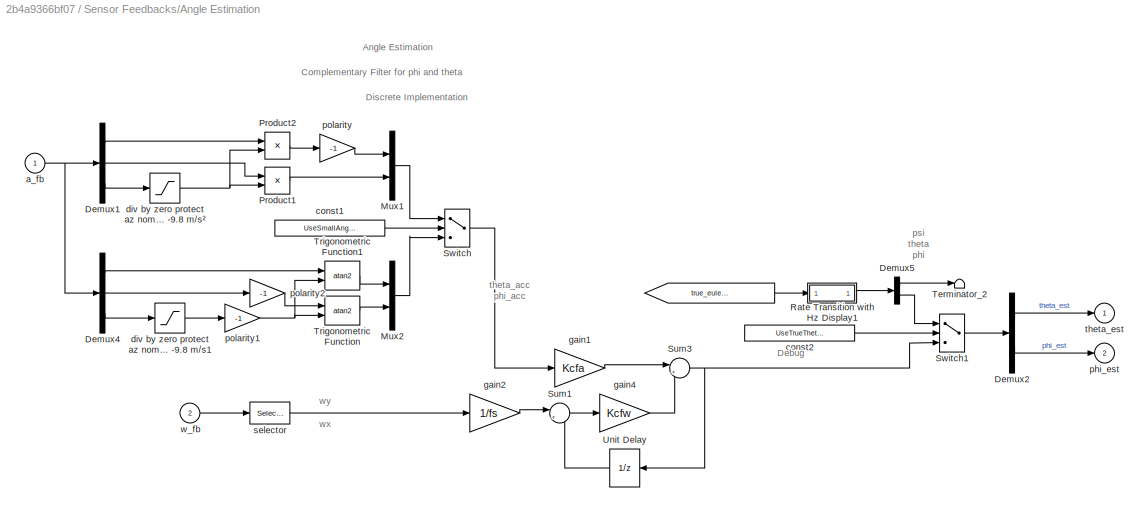
BLOCK [SubSystem] Sensor Feedbacks/Angle Estimation
  Ports = [2, 2]
  RequestExecContextInheritance = off
BLOCK [From] Sensor Feedbacks/Angle Estimation/ 
  Commented = on
  GotoTag = true_euler_angles
  TagVisibility = global
BLOCK [Demux] Sensor Feedbacks/Angle Estimation/Demux1
  AttributesFormatString = %<Outputs>
  DisplayOption = bar
  Outputs = 3
  Ports = [1, 3]
BLOCK [Demux] Sensor Feedbacks/Angle Estimation/Demux2
  AttributesFormatString = %<Outputs>
  DisplayOption = bar
  Outputs = [1 1]
  Ports = [1, 2]
BLOCK [Demux] Sensor Feedbacks/Angle Estimation/Demux4
  AttributesFormatString = %<Outputs>
  DisplayOption = bar
  Outputs = 3
  Ports = [1, 3]
BLOCK [Demux] Sensor Feedbacks/Angle Estimation/Demux5
  AttributesFormatString = %<Outputs>
  DisplayOption = bar
  Outputs = [1 2]
  Ports = [1, 2]
BLOCK [Mux] Sensor Feedbacks/Angle Estimation/Mux1
  AttributesFormatString = %<Inputs>
  DisplayOption = bar
  Inputs = 2
  Ports = [2, 1]
BLOCK [Mux] Sensor Feedbacks/Angle Estimation/Mux2
  AttributesFormatString = %<Inputs>
  DisplayOption = bar
  Inputs = 2
  Ports = [2, 1]
BLOCK [Product] Sensor Feedbacks/Angle Estimation/Product1
  InputSameDT = off
  Inputs = */
  OutDataTypeStr = Inherit: Inherit via internal rule
  Ports = [2, 1]
  SaturateOnIntegerOverflow = off
BLOCK [Product] Sensor Feedbacks/Angle Estimation/Product2
  InputSameDT = off
  Inputs = */
  OutDataTypeStr = Inherit: Inherit via internal rule
  Ports = [2, 1]
  SaturateOnIntegerOverflow = off
BLOCK [SubSystem] Sensor Feedbacks/Angle Estimation/Rate Transition with Hz Display1
  Ports = [1, 1]
  RequestExecContextInheritance = off
BLOCK [Inport] Sensor Feedbacks/Angle Estimation/Rate Transition with Hz Display1/In1
  IconDisplay = Port number
BLOCK [Outport] Sensor Feedbacks/Angle Estimation/Rate Transition with Hz Display1/Out1
  IconDisplay = Port number
BLOCK [RateTransition] Sensor Feedbacks/Angle Estimation/Rate Transition with Hz Display1/Rate Transition8
  InitialCondition = ic
  OutPortSampleTime = Ts
BLOCK [Sum] Sensor Feedbacks/Angle Estimation/Sum1
  IconShape = round
  InputSameDT = off
  Inputs = |++
  OutDataTypeStr = Inherit: Inherit via internal rule
  Ports = [2, 1]
  SaturateOnIntegerOverflow = off
BLOCK [Sum] Sensor Feedbacks/Angle Estimation/Sum3
  IconShape = round
  InputSameDT = off
  Inputs = |++
  OutDataTypeStr = Inherit: Inherit via internal rule
  Ports = [2, 1]
  SaturateOnIntegerOverflow = off
BLOCK [Switch] Sensor Feedbacks/Angle Estimation/Switch
  InputSameDT = off
  SaturateOnIntegerOverflow = off
  Threshold = 0.5
BLOCK [Switch] Sensor Feedbacks/Angle Estimation/Switch1
  InputSameDT = off
  SaturateOnIntegerOverflow = off
  Threshold = 0.5
BLOCK [Terminator] Sensor Feedbacks/Angle Estimation/Terminator_2
BLOCK [Trigonometry] Sensor Feedbacks/Angle Estimation/Trigonometric Function
  Operator = atan2
  Ports = [2, 1]
BLOCK [Trigonometry] Sensor Feedbacks/Angle Estimation/Trigonometric Function1
  Operator = atan2
  Ports = [2, 1]
BLOCK [UnitDelay] Sensor Feedbacks/Angle Estimation/Unit Delay
  InputProcessing = Elements as channels (sample based)
  SampleTime = -1
BLOCK [Inport] Sensor Feedbacks/Angle Estimation/a_fb
  IconDisplay = Port number
BLOCK [Constant] Sensor Feedbacks/Angle Estimation/const1
  Value = UseSmallAngleApprox
BLOCK [Constant] Sensor Feedbacks/Angle Estimation/const2
  Value = UseTrueThetaPhi
BLOCK [Saturate] Sensor Feedbacks/Angle Estimation/div by zero protect az nominally -9.8 m//s1
  AttributesFormatString = %<LowerLimit> to %<UpperLimit>
  InputPortMap = u0
  LowerLimit = -20
  Ports = [1, 1]
  UpperLimit = -1
BLOCK [Saturate] Sensor Feedbacks/Angle Estimation/div by zero protect az nominally -9.8 m//s²
  AttributesFormatString = %<LowerLimit> to %<UpperLimit>
  InputPortMap = u0
  LowerLimit = -20
  Ports = [1, 1]
  UpperLimit = -1
BLOCK [Gain] Sensor Feedbacks/Angle Estimation/gain1
  Gain = Kcfa
  OutDataTypeStr = Inherit: Inherit via internal rule
  ParamDataTypeStr = Inherit: Inherit via internal rule
  SaturateOnIntegerOverflow = off
BLOCK [Gain] Sensor Feedbacks/Angle Estimation/gain2
  Gain = 1/fs
  OutDataTypeStr = Inherit: Inherit via internal rule
  ParamDataTypeStr = Inherit: Inherit via internal rule
  SaturateOnIntegerOverflow = off
BLOCK [Gain] Sensor Feedbacks/Angle Estimation/gain4
  Gain = Kcfw
  OutDataTypeStr = Inherit: Inherit via internal rule
  ParamDataTypeStr = Inherit: Inherit via internal rule
  SaturateOnIntegerOverflow = off
BLOCK [Outport] Sensor Feedbacks/Angle Estimation/phi_est
  IconDisplay = Port number
  Port = 2
BLOCK [Gain] Sensor Feedbacks/Angle Estimation/polarity
  Gain = -1
  OutDataTypeStr = Inherit: Inherit via internal rule
  ParamDataTypeStr = Inherit: Inherit via internal rule
  SaturateOnIntegerOverflow = off
BLOCK [Gain] Sensor Feedbacks/Angle Estimation/polarity1
  Gain = -1
  OutDataTypeStr = Inherit: Inherit via internal rule
  ParamDataTypeStr = Inherit: Inherit via internal rule
  SaturateOnIntegerOverflow = off
BLOCK [Gain] Sensor Feedbacks/Angle Estimation/polarity2
  Gain = -1
  OutDataTypeStr = Inherit: Inherit via internal rule
  ParamDataTypeStr = Inherit: Inherit via internal rule
  SaturateOnIntegerOverflow = off
BLOCK [Selector] Sensor Feedbacks/Angle Estimation/selector
  AttributesFormatString = %<Indices>
  IndexOptions = Index vector (dialog)
  Indices = [2,1]
  InputPortWidth = 3
  OutputSizes = 1
  Ports = [1, 1]
BLOCK [Outport] Sensor Feedbacks/Angle Estimation/theta_est
  IconDisplay = Port number
BLOCK [Inport] Sensor Feedbacks/Angle Estimation/w_fb
  IconDisplay = Port number
  Port = 2
BLOCK [From] Sensor Feedbacks/From
  GotoTag = imu_calibrate
  TagVisibility = global
BLOCK [SubSystem] Sensor Feedbacks/IMU
  Ports = [1, 2]
  RequestExecContextInheritance = off
BLOCK [SubSystem] Sensor Feedbacks/IMU/IMU Calibration
  Ports = [3, 2]
  RequestExecContextInheritance = off
BLOCK [Demux] Sensor Feedbacks/IMU/IMU Calibration/Demux4
  AttributesFormatString = %<Outputs>
  DisplayOption = bar
  Outputs = [3 3]
  Ports = [1, 2]
BLOCK [Mux] Sensor Feedbacks/IMU/IMU Calibration/Mux5
  AttributesFormatString = %<Inputs>
  DisplayOption = bar
  Inputs = [3 3]
  Ports = [2, 1]
BLOCK [SubSystem] Sensor Feedbacks/IMU/IMU Calibration/Subsystem
  Ports = [1, 1]
  RequestExecContextInheritance = off
BLOCK [Demux] Sensor Feedbacks/IMU/IMU Calibration/Subsystem/Demux
  DisplayOption = bar
  Outputs = 6
  Ports = [1, 6]
BLOCK [Inport] Sensor Feedbacks/IMU/IMU Calibration/Subsystem/In1
  IconDisplay = Port number
BLOCK [Mux] Sensor Feedbacks/IMU/IMU Calibration/Subsystem/Mux
  DisplayOption = bar
  Inputs = 6
  Ports = [6, 1]
BLOCK [Outport] Sensor Feedbacks/IMU/IMU Calibration/Subsystem/Out1
  IconDisplay = Port number
BLOCK [SubSystem] Sensor Feedbacks/IMU/IMU Calibration/Subsystem/Subsystem1
  Ports = [1, 1]
  RequestExecContextInheritance = off
BLOCK [Demux] Sensor Feedbacks/IMU/IMU Calibration/Subsystem/Subsystem1/Demux
  DisplayOption = bar
  Outputs = [9 1]
  Ports = [1, 2]
BLOCK [Gain] Sensor Feedbacks/IMU/IMU Calibration/Subsystem/Subsystem1/Gain
  Gain = .1
  OutDataTypeStr = Inherit: Inherit via internal rule
  ParamDataTypeStr = Inherit: Inherit via internal rule
  SaturateOnIntegerOverflow = off
BLOCK [Inport] Sensor Feedbacks/IMU/IMU Calibration/Subsystem/Subsystem1/In1
  IconDisplay = Port number
BLOCK [Mux] Sensor Feedbacks/IMU/IMU Calibration/Subsystem/Subsystem1/Mux
  DisplayOption = bar
  Inputs = [1 9]
  Ports = [2, 1]
BLOCK [Outport] Sensor Feedbacks/IMU/IMU Calibration/Subsystem/Subsystem1/Out1
  IconDisplay = Port number
BLOCK [Sum] Sensor Feedbacks/IMU/IMU Calibration/Subsystem/Subsystem1/Sum
  InputSameDT = off
  Inputs = +
  OutDataTypeStr = Inherit: Inherit via internal rule
  Ports = [1, 1]
  SaturateOnIntegerOverflow = off
BLOCK [Terminator] Sensor Feedbacks/IMU/IMU Calibration/Subsystem/Subsystem1/Terminator
BLOCK [UnitDelay] Sensor Feedbacks/IMU/IMU Calibration/Subsystem/Subsystem1/Unit Delay
  InputProcessing = Elements as channels (sample based)
  SampleTime = -1
BLOCK [SubSystem] Sensor Feedbacks/IMU/IMU Calibration/Subsystem/Subsystem2
  Ports = [1, 1]
  RequestExecContextInheritance = off
BLOCK [Demux] Sensor Feedbacks/IMU/IMU Calibration/Subsystem/Subsystem2/Demux
  DisplayOption = bar
  Outputs = [9 1]
  Ports = [1, 2]
BLOCK [Gain] Sensor Feedbacks/IMU/IMU Calibration/Subsystem/Subsystem2/Gain
  Gain = .1
  OutDataTypeStr = Inherit: Inherit via internal rule
  ParamDataTypeStr = Inherit: Inherit via internal rule
  SaturateOnIntegerOverflow = off
BLOCK [Inport] Sensor Feedbacks/IMU/IMU Calibration/Subsystem/Subsystem2/In1
  IconDisplay = Port number
BLOCK [Mux] Sensor Feedbacks/IMU/IMU Calibration/Subsystem/Subsystem2/Mux
  DisplayOption = bar
  Inputs = [1 9]
  Ports = [2, 1]
BLOCK [Outport] Sensor Feedbacks/IMU/IMU Calibration/Subsystem/Subsystem2/Out1
  IconDisplay = Port number
BLOCK [Sum] Sensor Feedbacks/IMU/IMU Calibration/Subsystem/Subsystem2/Sum
  InputSameDT = off
  Inputs = +
  OutDataTypeStr = Inherit: Inherit via internal rule
  Ports = [1, 1]
  SaturateOnIntegerOverflow = off
BLOCK [Terminator] Sensor Feedbacks/IMU/IMU Calibration/Subsystem/Subsystem2/Terminator
BLOCK [UnitDelay] Sensor Feedbacks/IMU/IMU Calibration/Subsystem/Subsystem2/Unit Delay
  InputProcessing = Elements as channels (sample based)
  SampleTime = -1
BLOCK [SubSystem] Sensor Feedbacks/IMU/IMU Calibration/Subsystem/Subsystem3
  Ports = [1, 1]
  RequestExecContextInheritance = off
BLOCK [Demux] Sensor Feedbacks/IMU/IMU Calibration/Subsystem/Subsystem3/Demux
  DisplayOption = bar
  Outputs = [9 1]
  Ports = [1, 2]
BLOCK [Gain] Sensor Feedbacks/IMU/IMU Calibration/Subsystem/Subsystem3/Gain
  Gain = .1
  OutDataTypeStr = Inherit: Inherit via internal rule
  ParamDataTypeStr = Inherit: Inherit via internal rule
  SaturateOnIntegerOverflow = off
BLOCK [Inport] Sensor Feedbacks/IMU/IMU Calibration/Subsystem/Subsystem3/In1
  IconDisplay = Port number
BLOCK [Mux] Sensor Feedbacks/IMU/IMU Calibration/Subsystem/Subsystem3/Mux
  DisplayOption = bar
  Inputs = [1 9]
  Ports = [2, 1]
BLOCK [Outport] Sensor Feedbacks/IMU/IMU Calibration/Subsystem/Subsystem3/Out1
  IconDisplay = Port number
BLOCK [Sum] Sensor Feedbacks/IMU/IMU Calibration/Subsystem/Subsystem3/Sum
  InputSameDT = off
  Inputs = +
  OutDataTypeStr = Inherit: Inherit via internal rule
  Ports = [1, 1]
  SaturateOnIntegerOverflow = off
BLOCK [Terminator] Sensor Feedbacks/IMU/IMU Calibration/Subsystem/Subsystem3/Terminator
BLOCK [UnitDelay] Sensor Feedbacks/IMU/IMU Calibration/Subsystem/Subsystem3/Unit Delay
  InputProcessing = Elements as channels (sample based)
  SampleTime = -1
BLOCK [SubSystem] Sensor Feedbacks/IMU/IMU Calibration/Subsystem/Subsystem4
  Ports = [1, 1]
  RequestExecContextInheritance = off
BLOCK [Demux] Sensor Feedbacks/IMU/IMU Calibration/Subsystem/Subsystem4/Demux
  DisplayOption = bar
  Outputs = [9 1]
  Ports = [1, 2]
BLOCK [Gain] Sensor Feedbacks/IMU/IMU Calibration/Subsystem/Subsystem4/Gain
  Gain = .1
  OutDataTypeStr = Inherit: Inherit via internal rule
  ParamDataTypeStr = Inherit: Inherit via internal rule
  SaturateOnIntegerOverflow = off
BLOCK [Inport] Sensor Feedbacks/IMU/IMU Calibration/Subsystem/Subsystem4/In1
  IconDisplay = Port number
BLOCK [Mux] Sensor Feedbacks/IMU/IMU Calibration/Subsystem/Subsystem4/Mux
  DisplayOption = bar
  Inputs = [1 9]
  Ports = [2, 1]
BLOCK [Outport] Sensor Feedbacks/IMU/IMU Calibration/Subsystem/Subsystem4/Out1
  IconDisplay = Port number
BLOCK [Sum] Sensor Feedbacks/IMU/IMU Calibration/Subsystem/Subsystem4/Sum
  InputSameDT = off
  Inputs = +
  OutDataTypeStr = Inherit: Inherit via internal rule
  Ports = [1, 1]
  SaturateOnIntegerOverflow = off
BLOCK [Terminator] Sensor Feedbacks/IMU/IMU Calibration/Subsystem/Subsystem4/Terminator
BLOCK [UnitDelay] Sensor Feedbacks/IMU/IMU Calibration/Subsystem/Subsystem4/Unit Delay
  InputProcessing = Elements as channels (sample based)
  SampleTime = -1
BLOCK [SubSystem] Sensor Feedbacks/IMU/IMU Calibration/Subsystem/Subsystem5
  Ports = [1, 1]
  RequestExecContextInheritance = off
BLOCK [Demux] Sensor Feedbacks/IMU/IMU Calibration/Subsystem/Subsystem5/Demux
  DisplayOption = bar
  Outputs = [9 1]
  Ports = [1, 2]
BLOCK [Gain] Sensor Feedbacks/IMU/IMU Calibration/Subsystem/Subsystem5/Gain
  Gain = .1
  OutDataTypeStr = Inherit: Inherit via internal rule
  ParamDataTypeStr = Inherit: Inherit via internal rule
  SaturateOnIntegerOverflow = off
BLOCK [Inport] Sensor Feedbacks/IMU/IMU Calibration/Subsystem/Subsystem5/In1
  IconDisplay = Port number
BLOCK [Mux] Sensor Feedbacks/IMU/IMU Calibration/Subsystem/Subsystem5/Mux
  DisplayOption = bar
  Inputs = [1 9]
  Ports = [2, 1]
BLOCK [Outport] Sensor Feedbacks/IMU/IMU Calibration/Subsystem/Subsystem5/Out1
  IconDisplay = Port number
BLOCK [Sum] Sensor Feedbacks/IMU/IMU Calibration/Subsystem/Subsystem5/Sum
  InputSameDT = off
  Inputs = +
  OutDataTypeStr = Inherit: Inherit via internal rule
  Ports = [1, 1]
  SaturateOnIntegerOverflow = off
BLOCK [Terminator] Sensor Feedbacks/IMU/IMU Calibration/Subsystem/Subsystem5/Terminator
BLOCK [UnitDelay] Sensor Feedbacks/IMU/IMU Calibration/Subsystem/Subsystem5/Unit Delay
  InputProcessing = Elements as channels (sample based)
  SampleTime = -1
BLOCK [SubSystem] Sensor Feedbacks/IMU/IMU Calibration/Subsystem/Subsystem6
  Ports = [1, 1]
  RequestExecContextInheritance = off
BLOCK [Demux] Sensor Feedbacks/IMU/IMU Calibration/Subsystem/Subsystem6/Demux
  DisplayOption = bar
  Outputs = [9 1]
  Ports = [1, 2]
BLOCK [Gain] Sensor Feedbacks/IMU/IMU Calibration/Subsystem/Subsystem6/Gain
  Gain = .1
  OutDataTypeStr = Inherit: Inherit via internal rule
  ParamDataTypeStr = Inherit: Inherit via internal rule
  SaturateOnIntegerOverflow = off
BLOCK [Inport] Sensor Feedbacks/IMU/IMU Calibration/Subsystem/Subsystem6/In1
  IconDisplay = Port number
BLOCK [Mux] Sensor Feedbacks/IMU/IMU Calibration/Subsystem/Subsystem6/Mux
  DisplayOption = bar
  Inputs = [1 9]
  Ports = [2, 1]
BLOCK [Outport] Sensor Feedbacks/IMU/IMU Calibration/Subsystem/Subsystem6/Out1
  IconDisplay = Port number
BLOCK [Sum] Sensor Feedbacks/IMU/IMU Calibration/Subsystem/Subsystem6/Sum
  InputSameDT = off
  Inputs = +
  OutDataTypeStr = Inherit: Inherit via internal rule
  Ports = [1, 1]
  SaturateOnIntegerOverflow = off
BLOCK [Terminator] Sensor Feedbacks/IMU/IMU Calibration/Subsystem/Subsystem6/Terminator
BLOCK [UnitDelay] Sensor Feedbacks/IMU/IMU Calibration/Subsystem/Subsystem6/Unit Delay
  InputProcessing = Elements as channels (sample based)
  SampleTime = -1
BLOCK [Sum] Sensor Feedbacks/IMU/IMU Calibration/Sum1
  IconShape = round
  InputSameDT = off
  Inputs = |+-
  OutDataTypeStr = Inherit: Inherit via internal rule
  Ports = [2, 1]
  SaturateOnIntegerOverflow = off
BLOCK [Sum] Sensor Feedbacks/IMU/IMU Calibration/Sum2
  IconShape = round
  InputSameDT = off
  Inputs = |+-
  OutDataTypeStr = Inherit: Inherit via internal rule
  Ports = [2, 1]
  SaturateOnIntegerOverflow = off
BLOCK [Sum] Sensor Feedbacks/IMU/IMU Calibration/Sum5
  IconShape = round
  InputSameDT = off
  Inputs = +-|
  OutDataTypeStr = Inherit: Inherit via internal rule
  Ports = [2, 1]
  SaturateOnIntegerOverflow = off
BLOCK [Switch] Sensor Feedbacks/IMU/IMU Calibration/Switch
  InputSameDT = off
  SaturateOnIntegerOverflow = off
  Threshold = 0.5
BLOCK [UnitDelay] Sensor Feedbacks/IMU/IMU Calibration/Unit Delay
  InitialCondition = [0 0 0 0 0 0]
  InputProcessing = Elements as channels (sample based)
  SampleTime = -1
BLOCK [Outport] Sensor Feedbacks/IMU/IMU Calibration/a_fb
  IconDisplay = Port number
BLOCK [Inport] Sensor Feedbacks/IMU/IMU Calibration/a_fb_raw
  IconDisplay = Port number
BLOCK [Constant] Sensor Feedbacks/IMU/IMU Calibration/const5
  SampleTime = 1/fs
  Value = [0 0 -9.80665]
BLOCK [Inport] Sensor Feedbacks/IMU/IMU Calibration/imu_calibrate
  IconDisplay = Port number
  Port = 3
BLOCK [Outport] Sensor Feedbacks/IMU/IMU Calibration/w_fb
  IconDisplay = Port number
  Port = 2
BLOCK [Inport] Sensor Feedbacks/IMU/IMU Calibration/w_fb_raw
  IconDisplay = Port number
  Port = 2
BLOCK [Mux] Sensor Feedbacks/IMU/Mux1
  DisplayOption = bar
  Inputs = 3
  Ports = [3, 1]
BLOCK [Mux] Sensor Feedbacks/IMU/Mux2
  DisplayOption = bar
  Inputs = 3
  Ports = [3, 1]
BLOCK [Scope] Sensor Feedbacks/IMU/Scope
  Floating = off
  NumInputPorts = 1
  Ports = [1]
  ScopeSpecificationString = Simulink.scopes.TimeScopeBlockCfg('CurrentConfiguration', extmgr.ConfigurationSet(extmgr.Configuration('Core','General UI',true),extmgr.Configuration('Core','Source UI',true),extmgr.Configuration('Sources','WiredSimulink',true,'DataLoggingVariableName','ScopeData1'),extmgr.Configuration('Visuals','Time Domain',true),extmgr.Configuration('Tools','Plot Navigation',true),extmgr.Configuration('Tools',...<+40ch>
BLOCK [Scope] Sensor Feedbacks/IMU/Scope1
  Floating = off
  NumInputPorts = 1
  Ports = [1]
  ScopeSpecificationString = Simulink.scopes.TimeScopeBlockCfg('CurrentConfiguration', extmgr.ConfigurationSet(extmgr.Configuration('Core','General UI',true),extmgr.Configuration('Core','Source UI',true),extmgr.Configuration('Sources','WiredSimulink',true,'DataLoggingVariableName','ScopeData2'),extmgr.Configuration('Visuals','Time Domain',true),extmgr.Configuration('Tools','Plot Navigation',true),extmgr.Configuration('Tools',...<+40ch>
BLOCK [Inport] Sensor Feedbacks/IMU/imu_calibrate 
  IconDisplay = Port number
BLOCK [S-Function] Sensor Feedbacks/IMU/mpu9250
  EnableBusSupport = off
  FunctionName = mpu9250
  Ports = [0, 6]
  SFcnIsStateOwnerBlock = off
  SFunctionDeploymentMode = off
BLOCK [Outport] Sensor Feedbacks/IMU/wx wy wz
  IconDisplay = Port number
BLOCK [Outport] Sensor Feedbacks/IMU/x_accel y_accel z_accel 
  IconDisplay = Port number
  Port = 2
BLOCK [Terminator] Sensor Feedbacks/Terminator_1
BLOCK [Outport] Sensor Feedbacks/phi_fb
  IconDisplay = Port number
  Port = 2
BLOCK [Outport] Sensor Feedbacks/theta_fb
  IconDisplay = Port number
BLOCK [Outport] Sensor Feedbacks/w_fb
  IconDisplay = Port number
  Port = 3
ANNOTATION (root): Snick Drone Controller
ANNOTATION (root): psi = yaw [z] theta = pitch [y] phi = roll [x]
ANNOTATION Control Loops: Attitude Angle Loop
ANNOTATION Control Loops: Attitude Rate Loop
ANNOTATION Control Loops: Gyro Feedbacks
ANNOTATION Control Loops: pitch roll
ANNOTATION Control Loops: pitch command
ANNOTATION Control Loops: yaw command
ANNOTATION Control Loops/Manual Control Override: +1 right –1 left
ANNOTATION Control Loops/Manual Control Override: +1 top 0 bottom
ANNOTATION Control Loops/Manual Control Override: ch1] throttle [left joy up/down] ch2] roll [righy joy left/right] [phi] ch3] pitch [right joy up/down] [theta] ch4] yaw [left joy left/right [psi dot] ch5] calibration [aux switch] ch6] throttle cut [arm switch] ch7] enable [flap switch] ch8] autonomous [rate switch] ch9] injection [fm switch]
ANNOTATION Control Loops/Manual Control Override: Altitude Rate Command
ANNOTATION Control Loops/Manual Control Override: Manual Control Inputs
ANNOTATION Control Loops/Manual Control Override: Sensitivy
ANNOTATION Control Loops/Manual Control Override: Tilt Angle Commands
ANNOTATION Control Loops/Manual Control Override: Yaw Rate Command
ANNOTATION Control Loops/Manual Control Override: psi = yaw [z] theta = pitch [y] phi = roll [x]
ANNOTATION Control Loops/Manual Control Override: rate switch. Away is manual which is 1
ANNOTATION Control Loops/Manual Control Override: –1 forward +1 backward
ANNOTATION Control Loops/Proportional Integral with Anti-Windup : Discrete Implementation
ANNOTATION Control Loops/Proportional Integral with Anti-Windup : Proportion Integral with Anti-windup
ANNOTATION Control Loops/hdot_cmd Manual Override: Manual Control
ANNOTATION Control Loops/psi_err Manual Override: Yaw Control Override
ANNOTATION Control Loops/psi_err Manual Override/sync_autonomous 1: injection = 0 => pass through 0 injection = 1 => start clock
ANNOTATION Control Loops/tilt_cmd Manual Override : Tilt Control Override
ANNOTATION Control Loops/tilt_cmd Manual Override /sync_autonomous 1: injection = 0 => pass through 0 injection = 1 => start clock
ANNOTATION Motor Command Mixing: +x fwd 1(cw) 2(ccw) +y right 4(ccw) 3(cw) +z down, +h up
ANNOTATION Motor Command Mixing: Kmixing = 1 1 1 -1 1 -1 1 1 1 -1 -1 -1 1 1 -1 1
ANNOTATION Motor Command Mixing: Motor Command Mixing
ANNOTATION Motor Command Mixing: Rotor command distribution
ANNOTATION Motor Command Mixing: Vehicle Motion Commands
ANNOTATION Motor Command Mixing/PWM: 0: off 1: enabled, send zeros 2: enabled, send cmd
ANNOTATION Motor Command Mixing/PWM: MOTOR PWM
ANNOTATION Motor Command Mixing/PWM: cmd zero on calibrate
ANNOTATION Motor Command Mixing/PWM/Subsystem4: 0 or 2 => send 2
ANNOTATION Motor Command Mixing/PWM/Subsystem4: 1 => send zeros
ANNOTATION Motor Command Mixing/PWM/Subsystem5: 0 or 2 => send 2
ANNOTATION Motor Command Mixing/PWM/Subsystem5: 1 => send zeros
ANNOTATION Motor Command Mixing/PWM/Subsystem6: 0 or 2 => send 2
ANNOTATION Motor Command Mixing/PWM/Subsystem6: 1 => send zeros
ANNOTATION Motor Command Mixing/PWM/Subsystem7: 0 or 2 => send 2
ANNOTATION Motor Command Mixing/PWM/Subsystem7: 1 => send zeros
ANNOTATION Sensor Feedbacks: Acceleration feedbacks (not used)
ANNOTATION Sensor Feedbacks: Sensor Feedbacks
ANNOTATION Sensor Feedbacks/Angle Estimation: Angle Estimation
ANNOTATION Sensor Feedbacks/Angle Estimation: Complementary Filter for phi and theta
ANNOTATION Sensor Feedbacks/Angle Estimation: Debug
ANNOTATION Sensor Feedbacks/Angle Estimation: Discrete Implementation
ANNOTATION Sensor Feedbacks/Angle Estimation: psi theta phi
ANNOTATION Sensor Feedbacks/Angle Estimation: theta_acc phi_acc
ANNOTATION Sensor Feedbacks/Angle Estimation: wy wx
ANNOTATION Sensor Feedbacks/IMU: accel in m/s^2
ANNOTATION Sensor Feedbacks/IMU: gyro in rad/s
ANNOTATION Sensor Feedbacks/IMU/IMU Calibration: 1 = 0,0,-9.8
ANNOTATION Sensor Feedbacks/IMU/IMU Calibration: 1 is calibrate
ANNOTATION Sensor Feedbacks/IMU/IMU Calibration: IMU Calibration
ANNOTATION Sensor Feedbacks/IMU/IMU Calibration: Latch to store values when calibrating
ANNOTATION Sensor Feedbacks/IMU/IMU Calibration: Should be all zeros if imu is perfect
LINE Control Loops/Attitude Proportional Gain:1 -> Control Loops/Saturation2:1
LINE Control Loops/Clock:1 -> Control Loops/Scope3:1
LINE Control Loops/Constant1:1 -> Control Loops/Mux:2
LINE Control Loops/Constant2:1 -> Control Loops/Sum1:1
LINE Control Loops/Constant3:1 -> Control Loops/Sum3:1
LINE Control Loops/Constant:1 -> Control Loops/hdot_cmd Manual Override:1
NET Control Loops/Demux2:1 -> Control Loops/Roll:1, Control Loops/Scope6:1
NET Control Loops/Demux2:2 -> Control Loops/Pitch:1, Control Loops/Scope5:1
LINE Control Loops/Demux2:3 -> Control Loops/Gain5:1
NET Control Loops/Gain1:1 -> Control Loops/Scope1:1, Control Loops/psi_err Manual Override:1
NET Control Loops/Gain2:1 -> Control Loops/Lift:1, Control Loops/Scope10:1
NET Control Loops/Gain5:1 -> Control Loops/Scope7:1, Control Loops/Yaw:1
NET Control Loops/Gain:1 -> Control Loops/Mux:1, Control Loops/Scope:1
LINE Control Loops/Manual Control Override/Altitude Rate Gain1:1 -> Control Loops/Manual Control Override/goto2:1
NET Control Loops/Manual Control Override/Altitude Rate Gain2:1 -> Control Loops/Manual Control Override/Mux:1, Control Loops/Manual Control Override/Scope:2
NET Control Loops/Manual Control Override/Altitude Rate Gain4:1 -> Control Loops/Manual Control Override/Mux:2, Control Loops/Manual Control Override/Scope:3
NET Control Loops/Manual Control Override/Altitude Rate Gain5:1 -> Control Loops/Manual Control Override/Altitude Rate Gain1:1, Control Loops/Manual Control Override/Scope:4
NET Control Loops/Manual Control Override/Gain:1 -> Control Loops/Manual Control Override/Scope:1, Control Loops/Manual Control Override/goto:1
LINE Control Loops/Manual Control Override/Mux:1 -> Control Loops/Manual Control Override/Selector1:1
LINE Control Loops/Manual Control Override/Selector1:1 -> Control Loops/Manual Control Override/goto1:1
LINE Control Loops/Manual Control Override/spektrum:1 -> Control Loops/Manual Control Override/Gain:1
LINE Control Loops/Manual Control Override/spektrum:2 -> Control Loops/Manual Control Override/Altitude Rate Gain2:1
LINE Control Loops/Manual Control Override/spektrum:3 -> Control Loops/Manual Control Override/Altitude Rate Gain4:1
LINE Control Loops/Manual Control Override/spektrum:4 -> Control Loops/Manual Control Override/Altitude Rate Gain5:1
LINE Control Loops/Manual Control Override/spektrum:5 -> Control Loops/Manual Control Override/goto6:1
LINE Control Loops/Manual Control Override/spektrum:7 -> Control Loops/Manual Control Override/goto9:1
NET Control Loops/Manual Control Override/spektrum:8 -> Control Loops/Manual Control Override/goto3:1, Control Loops/Manual Control Override/goto4:1, Control Loops/Manual Control Override/goto5:1
LINE Control Loops/Manual Control Override/spektrum:9 -> Control Loops/Manual Control Override/Goto1:1
LINE Control Loops/Mux1:1 -> Control Loops/Attitude Proportional Gain:1
LINE Control Loops/Mux2:1 -> Control Loops/Sum4:2
LINE Control Loops/Mux:1 -> Control Loops/tilt_cmd Manual Override :1
NET Control Loops/Proportional Gain:1 -> Control Loops/Gain2:1, Control Loops/Scope9:1
LINE Control Loops/Proportional Integral with Anti-Windup /Altitude Integral Gain:1 -> Control Loops/Proportional Integral with Anti-Windup /gain2:1
LINE Control Loops/Proportional Integral with Anti-Windup /Rate Proportional Gain:1 -> Control Loops/Proportional Integral with Anti-Windup /Sum5:1
NET Control Loops/Proportional Integral with Anti-Windup /Saturation2:1 -> Control Loops/Proportional Integral with Anti-Windup /Sum1:1, Control Loops/Proportional Integral with Anti-Windup /y:1
LINE Control Loops/Proportional Integral with Anti-Windup /Sum10:1 -> Control Loops/Proportional Integral with Anti-Windup /Unit Delay:1
LINE Control Loops/Proportional Integral with Anti-Windup /Sum1:1 -> Control Loops/Proportional Integral with Anti-Windup /Altitude Integral Gain:1
LINE Control Loops/Proportional Integral with Anti-Windup /Sum5:1 -> Control Loops/Proportional Integral with Anti-Windup /Saturation2:1
NET Control Loops/Proportional Integral with Anti-Windup /Unit Delay:1 -> Control Loops/Proportional Integral with Anti-Windup /Sum10:2, Control Loops/Proportional Integral with Anti-Windup /Sum1:2, Control Loops/Proportional Integral with Anti-Windup /Sum5:2
LINE Control Loops/Proportional Integral with Anti-Windup /gain2:1 -> Control Loops/Proportional Integral with Anti-Windup /Sum10:1
LINE Control Loops/Proportional Integral with Anti-Windup /u:1 -> Control Loops/Proportional Integral with Anti-Windup /Rate Proportional Gain:1
LINE Control Loops/Proportional Integral with Anti-Windup :1 -> Control Loops/Demux2:1
NET Control Loops/Rate Transition1:1 -> Control Loops/Scope13:1, Control Loops/Subsystem1:1
NET Control Loops/Rate Transition:1 -> Control Loops/Scope13:2, Control Loops/Subsystem:1
LINE Control Loops/Saturation2:1 -> Control Loops/Sum2:1
LINE Control Loops/Selector1:1 -> Control Loops/Sum4:1
LINE Control Loops/Subsystem/Constant2:1 -> Control Loops/Subsystem/Saturation Dynamic:1
LINE Control Loops/Subsystem/Constant3:1 -> Control Loops/Subsystem/Saturation Dynamic:3
LINE Control Loops/Subsystem/In1:1 -> Control Loops/Subsystem/Saturation Dynamic:2
LINE Control Loops/Subsystem/Saturation Dynamic:1 -> Control Loops/Subsystem/Out1:1
LINE Control Loops/Subsystem1/Constant2:1 -> Control Loops/Subsystem1/Saturation Dynamic:1
LINE Control Loops/Subsystem1/Constant3:1 -> Control Loops/Subsystem1/Saturation Dynamic:3
LINE Control Loops/Subsystem1/In1:1 -> Control Loops/Subsystem1/Saturation Dynamic:2
LINE Control Loops/Subsystem1/Saturation Dynamic:1 -> Control Loops/Subsystem1/Out1:1
NET Control Loops/Subsystem1:1 -> Control Loops/Display1:1, Control Loops/Scope2:2, Control Loops/Sum1:2
NET Control Loops/Subsystem:1 -> Control Loops/Display:1, Control Loops/Scope2:1, Control Loops/Sum3:2
NET Control Loops/Sum1:1 -> Control Loops/Gain:1, Control Loops/Scope11:1
LINE Control Loops/Sum2:1 -> Control Loops/Proportional Integral with Anti-Windup :1
LINE Control Loops/Sum3:1 -> Control Loops/Gain1:1
LINE Control Loops/Sum4:1 -> Control Loops/Mux1:1
NET Control Loops/camera :1 -> Control Loops/Rate Transition:1, Control Loops/Scope12:1
NET Control Loops/camera :2 -> Control Loops/Rate Transition1:1, Control Loops/Scope12:2
LINE Control Loops/file2:1 -> Control Loops/Scope4:1
LINE Control Loops/hdot_cmd Manual Override/From1:1 -> Control Loops/hdot_cmd Manual Override/Switch2:2
NET Control Loops/hdot_cmd Manual Override/From:1 -> Control Loops/hdot_cmd Manual Override/Switch2:1, Control Loops/hdot_cmd Manual Override/Switch2:3
LINE Control Loops/hdot_cmd Manual Override/Switch2:1 -> Control Loops/hdot_cmd Manual Override/psi_err1:1
LINE Control Loops/hdot_cmd Manual Override:1 -> Control Loops/Proportional Gain:1
LINE Control Loops/phi_fb:1 -> Control Loops/Mux2:1
LINE Control Loops/psi_err Manual Override/ :1 -> Control Loops/psi_err Manual Override/Switch:1
NET Control Loops/psi_err Manual Override/1-D Lookup Table1:1 -> Control Loops/psi_err Manual Override/Scope1:1, Control Loops/psi_err Manual Override/Switch:3
LINE Control Loops/psi_err Manual Override/Constant1:1 -> Control Loops/psi_err Manual Override/Switch1:3
LINE Control Loops/psi_err Manual Override/Constant2:1 -> Control Loops/psi_err Manual Override/Switch4:3
LINE Control Loops/psi_err Manual Override/Constant3:1 -> Control Loops/psi_err Manual Override/Switch4:1
LINE Control Loops/psi_err Manual Override/Constant:1 -> Control Loops/psi_err Manual Override/Switch1:1
NET Control Loops/psi_err Manual Override/From1:1 -> Control Loops/psi_err Manual Override/NOT:1, Control Loops/psi_err Manual Override/Switch2:2
NET Control Loops/psi_err Manual Override/From2:1 -> Control Loops/psi_err Manual Override/Switch1:2, Control Loops/psi_err Manual Override/Switch:2
LINE Control Loops/psi_err Manual Override/From:1 -> Control Loops/psi_err Manual Override/Switch2:1
LINE Control Loops/psi_err Manual Override/Logical Operator:1 -> Control Loops/psi_err Manual Override/Switch4:2
LINE Control Loops/psi_err Manual Override/NOT:1 -> Control Loops/psi_err Manual Override/Logical Operator:1
LINE Control Loops/psi_err Manual Override/Switch1:1 -> Control Loops/psi_err Manual Override/Logical Operator:2
NET Control Loops/psi_err Manual Override/Switch2:1 -> Control Loops/psi_err Manual Override/Scope4:1, Control Loops/psi_err Manual Override/psi_err1:1
LINE Control Loops/psi_err Manual Override/Switch4:1 -> Control Loops/psi_err Manual Override/sync_autonomous 1:1
LINE Control Loops/psi_err Manual Override/Switch:1 -> Control Loops/psi_err Manual Override/Switch2:3
LINE Control Loops/psi_err Manual Override/sync_autonomous 1/Bias:1 -> Control Loops/psi_err Manual Override/sync_autonomous 1/Switch:1
LINE Control Loops/psi_err Manual Override/sync_autonomous 1/Constant1:1 -> Control Loops/psi_err Manual Override/sync_autonomous 1/Switch1:1
LINE Control Loops/psi_err Manual Override/sync_autonomous 1/Constant:1 -> Control Loops/psi_err Manual Override/sync_autonomous 1/Switch:3
NET Control Loops/psi_err Manual Override/sync_autonomous 1/Switch:1 -> Control Loops/psi_err Manual Override/sync_autonomous 1/Unit Delay:1, Control Loops/psi_err Manual Override/sync_autonomous 1/time :1
LINE Control Loops/psi_err Manual Override/sync_autonomous 1/Unit Delay:1 -> Control Loops/psi_err Manual Override/sync_autonomous 1/Bias:1
LINE Control Loops/psi_err Manual Override/sync_autonomous 1/injection :1 -> Control Loops/psi_err Manual Override/sync_autonomous 1/Switch:2
NET Control Loops/psi_err Manual Override/sync_autonomous 1:1 -> Control Loops/psi_err Manual Override/1-D Lookup Table1:1, Control Loops/psi_err Manual Override/Scope2:1
LINE Control Loops/psi_err Manual Override:1 -> Control Loops/Mux1:2
LINE Control Loops/theta_fb:1 -> Control Loops/Mux2:2
LINE Control Loops/tilt_cmd Manual Override / :1 -> Control Loops/tilt_cmd Manual Override /Switch:1
NET Control Loops/tilt_cmd Manual Override /1-D Lookup Table2:1 -> Control Loops/tilt_cmd Manual Override /Scope1:1, Control Loops/tilt_cmd Manual Override /Switch:3
LINE Control Loops/tilt_cmd Manual Override /Constant1:1 -> Control Loops/tilt_cmd Manual Override /Switch1:3
LINE Control Loops/tilt_cmd Manual Override /Constant2:1 -> Control Loops/tilt_cmd Manual Override /Switch3:3
LINE Control Loops/tilt_cmd Manual Override /Constant3:1 -> Control Loops/tilt_cmd Manual Override /Switch3:1
LINE Control Loops/tilt_cmd Manual Override /Constant:1 -> Control Loops/tilt_cmd Manual Override /Switch1:1
NET Control Loops/tilt_cmd Manual Override /From1:1 -> Control Loops/tilt_cmd Manual Override /NOT:1, Control Loops/tilt_cmd Manual Override /Switch2:2
NET Control Loops/tilt_cmd Manual Override /From2:1 -> Control Loops/tilt_cmd Manual Override /Switch1:2, Control Loops/tilt_cmd Manual Override /Switch:2
LINE Control Loops/tilt_cmd Manual Override /From:1 -> Control Loops/tilt_cmd Manual Override /Switch2:1
LINE Control Loops/tilt_cmd Manual Override /Logical Operator:1 -> Control Loops/tilt_cmd Manual Override /Switch3:2
LINE Control Loops/tilt_cmd Manual Override /NOT:1 -> Control Loops/tilt_cmd Manual Override /Logical Operator:1
LINE Control Loops/tilt_cmd Manual Override /Switch1:1 -> Control Loops/tilt_cmd Manual Override /Logical Operator:2
NET Control Loops/tilt_cmd Manual Override /Switch2:1 -> Control Loops/tilt_cmd Manual Override /Scope3:1, Control Loops/tilt_cmd Manual Override /psi_err1:1
LINE Control Loops/tilt_cmd Manual Override /Switch3:1 -> Control Loops/tilt_cmd Manual Override /sync_autonomous 1:1
LINE Control Loops/tilt_cmd Manual Override /Switch:1 -> Control Loops/tilt_cmd Manual Override /Switch2:3
LINE Control Loops/tilt_cmd Manual Override /sync_autonomous 1/Bias:1 -> Control Loops/tilt_cmd Manual Override /sync_autonomous 1/Switch:1
LINE Control Loops/tilt_cmd Manual Override /sync_autonomous 1/Constant1:1 -> Control Loops/tilt_cmd Manual Override /sync_autonomous 1/Switch1:1
LINE Control Loops/tilt_cmd Manual Override /sync_autonomous 1/Constant:1 -> Control Loops/tilt_cmd Manual Override /sync_autonomous 1/Switch:3
NET Control Loops/tilt_cmd Manual Override /sync_autonomous 1/Switch1:1 -> Control Loops/tilt_cmd Manual Override /sync_autonomous 1/Unit Delay:1, Control Loops/tilt_cmd Manual Override /sync_autonomous 1/time :1
NET Control Loops/tilt_cmd Manual Override /sync_autonomous 1/Switch:1 -> Control Loops/tilt_cmd Manual Override /sync_autonomous 1/Switch1:2, Control Loops/tilt_cmd Manual Override /sync_autonomous 1/Switch1:3
LINE Control Loops/tilt_cmd Manual Override /sync_autonomous 1/Unit Delay:1 -> Control Loops/tilt_cmd Manual Override /sync_autonomous 1/Bias:1
LINE Control Loops/tilt_cmd Manual Override /sync_autonomous 1/injection :1 -> Control Loops/tilt_cmd Manual Override /sync_autonomous 1/Switch:2
NET Control Loops/tilt_cmd Manual Override /sync_autonomous 1:1 -> Control Loops/tilt_cmd Manual Override /1-D Lookup Table2:1, Control Loops/tilt_cmd Manual Override /Scope2:1
NET Control Loops/tilt_cmd Manual Override :1 -> Control Loops/Scope8:1, Control Loops/Selector1:1
LINE Control Loops/update rate:1 -> Control Loops/file2:1
LINE Control Loops/w_fb:1 -> Control Loops/Sum2:2
LINE Control Loops:1 -> Motor Command Mixing:1
LINE Control Loops:2 -> Motor Command Mixing:2
LINE Control Loops:3 -> Motor Command Mixing:3
LINE Control Loops:4 -> Motor Command Mixing:4
LINE Motor Command Mixing/Constant1:1 -> Motor Command Mixing/Switch:1
LINE Motor Command Mixing/Constant:1 -> Motor Command Mixing/Product1:2
LINE Motor Command Mixing/From:1 -> Motor Command Mixing/PWM:2
LINE Motor Command Mixing/Lift:1 -> Motor Command Mixing/Mux4:1
NET Motor Command Mixing/Mux4:1 -> Motor Command Mixing/Product1:1, Motor Command Mixing/Scope2:1
LINE Motor Command Mixing/PWM/Constant:1 -> Motor Command Mixing/PWM/Relational Operator1:2
LINE Motor Command Mixing/PWM/Data Type Conversion1:1 -> Motor Command Mixing/PWM/S-Function:1
LINE Motor Command Mixing/PWM/Demux:1 -> Motor Command Mixing/PWM/Subsystem:1
LINE Motor Command Mixing/PWM/Demux:2 -> Motor Command Mixing/PWM/Subsystem1:1
LINE Motor Command Mixing/PWM/Demux:3 -> Motor Command Mixing/PWM/Subsystem2:1
LINE Motor Command Mixing/PWM/Demux:4 -> Motor Command Mixing/PWM/Subsystem3:1
NET Motor Command Mixing/PWM/Gain5:1 -> Motor Command Mixing/PWM/Demux:1, Motor Command Mixing/PWM/Scope1:1
LINE Motor Command Mixing/PWM/Relational Operator1:1 -> Motor Command Mixing/PWM/Data Type Conversion1:1
LINE Motor Command Mixing/PWM/Subsystem/Constant2:1 -> Motor Command Mixing/PWM/Subsystem/Saturation Dynamic:1
LINE Motor Command Mixing/PWM/Subsystem/Constant3:1 -> Motor Command Mixing/PWM/Subsystem/Saturation Dynamic:3
NET Motor Command Mixing/PWM/Subsystem/In1:1 -> Motor Command Mixing/PWM/Subsystem/Saturation Dynamic:2, Motor Command Mixing/PWM/Subsystem/Scope2:1
NET Motor Command Mixing/PWM/Subsystem/Saturation Dynamic:1 -> Motor Command Mixing/PWM/Subsystem/Out1:1, Motor Command Mixing/PWM/Subsystem/Scope1:1
LINE Motor Command Mixing/PWM/Subsystem1/Constant2:1 -> Motor Command Mixing/PWM/Subsystem1/Saturation Dynamic:1
LINE Motor Command Mixing/PWM/Subsystem1/Constant3:1 -> Motor Command Mixing/PWM/Subsystem1/Saturation Dynamic:3
NET Motor Command Mixing/PWM/Subsystem1/In1:1 -> Motor Command Mixing/PWM/Subsystem1/Saturation Dynamic:2, Motor Command Mixing/PWM/Subsystem1/Scope2:1
NET Motor Command Mixing/PWM/Subsystem1/Saturation Dynamic:1 -> Motor Command Mixing/PWM/Subsystem1/Out1:1, Motor Command Mixing/PWM/Subsystem1/Scope1:1
LINE Motor Command Mixing/PWM/Subsystem1:1 -> Motor Command Mixing/PWM/Subsystem5:2
LINE Motor Command Mixing/PWM/Subsystem2/Constant2:1 -> Motor Command Mixing/PWM/Subsystem2/Saturation Dynamic:1
LINE Motor Command Mixing/PWM/Subsystem2/Constant3:1 -> Motor Command Mixing/PWM/Subsystem2/Saturation Dynamic:3
NET Motor Command Mixing/PWM/Subsystem2/In1:1 -> Motor Command Mixing/PWM/Subsystem2/Saturation Dynamic:2, Motor Command Mixing/PWM/Subsystem2/Scope2:1
NET Motor Command Mixing/PWM/Subsystem2/Saturation Dynamic:1 -> Motor Command Mixing/PWM/Subsystem2/Out1:1, Motor Command Mixing/PWM/Subsystem2/Scope1:1
LINE Motor Command Mixing/PWM/Subsystem2:1 -> Motor Command Mixing/PWM/Subsystem6:2
LINE Motor Command Mixing/PWM/Subsystem3/Constant2:1 -> Motor Command Mixing/PWM/Subsystem3/Saturation Dynamic:1
LINE Motor Command Mixing/PWM/Subsystem3/Constant3:1 -> Motor Command Mixing/PWM/Subsystem3/Saturation Dynamic:3
NET Motor Command Mixing/PWM/Subsystem3/In1:1 -> Motor Command Mixing/PWM/Subsystem3/Saturation Dynamic:2, Motor Command Mixing/PWM/Subsystem3/Scope2:1
NET Motor Command Mixing/PWM/Subsystem3/Saturation Dynamic:1 -> Motor Command Mixing/PWM/Subsystem3/Out1:1, Motor Command Mixing/PWM/Subsystem3/Scope1:1
LINE Motor Command Mixing/PWM/Subsystem3:1 -> Motor Command Mixing/PWM/Subsystem7:2
LINE Motor Command Mixing/PWM/Subsystem4/Constant1:1 -> Motor Command Mixing/PWM/Subsystem4/Switch:1
LINE Motor Command Mixing/PWM/Subsystem4/Constant:1 -> Motor Command Mixing/PWM/Subsystem4/Relational Operator1:2
LINE Motor Command Mixing/PWM/Subsystem4/Data Type Conversion1:1 -> Motor Command Mixing/PWM/Subsystem4/Switch:2
NET Motor Command Mixing/PWM/Subsystem4/In1:1 -> Motor Command Mixing/PWM/Subsystem4/Relational Operator1:1, Motor Command Mixing/PWM/Subsystem4/Scope1:1
NET Motor Command Mixing/PWM/Subsystem4/In2:1 -> Motor Command Mixing/PWM/Subsystem4/Scope2:1, Motor Command Mixing/PWM/Subsystem4/Switch:3
LINE Motor Command Mixing/PWM/Subsystem4/Relational Operator1:1 -> Motor Command Mixing/PWM/Subsystem4/Data Type Conversion1:1
NET Motor Command Mixing/PWM/Subsystem4/Switch:1 -> Motor Command Mixing/PWM/Subsystem4/Out1:1, Motor Command Mixing/PWM/Subsystem4/Scope3:1
NET Motor Command Mixing/PWM/Subsystem4:1 -> Motor Command Mixing/PWM/S-Function:2, Motor Command Mixing/PWM/Scope:1
LINE Motor Command Mixing/PWM/Subsystem5/Constant1:1 -> Motor Command Mixing/PWM/Subsystem5/Switch:1
LINE Motor Command Mixing/PWM/Subsystem5/Constant:1 -> Motor Command Mixing/PWM/Subsystem5/Relational Operator1:2
LINE Motor Command Mixing/PWM/Subsystem5/Data Type Conversion1:1 -> Motor Command Mixing/PWM/Subsystem5/Switch:2
NET Motor Command Mixing/PWM/Subsystem5/In1:1 -> Motor Command Mixing/PWM/Subsystem5/Relational Operator1:1, Motor Command Mixing/PWM/Subsystem5/Scope1:1
NET Motor Command Mixing/PWM/Subsystem5/In2:1 -> Motor Command Mixing/PWM/Subsystem5/Scope2:1, Motor Command Mixing/PWM/Subsystem5/Switch:3
LINE Motor Command Mixing/PWM/Subsystem5/Relational Operator1:1 -> Motor Command Mixing/PWM/Subsystem5/Data Type Conversion1:1
NET Motor Command Mixing/PWM/Subsystem5/Switch:1 -> Motor Command Mixing/PWM/Subsystem5/Out1:1, Motor Command Mixing/PWM/Subsystem5/Scope3:1
NET Motor Command Mixing/PWM/Subsystem5:1 -> Motor Command Mixing/PWM/S-Function:3, Motor Command Mixing/PWM/Scope:2
LINE Motor Command Mixing/PWM/Subsystem6/Constant1:1 -> Motor Command Mixing/PWM/Subsystem6/Switch:1
LINE Motor Command Mixing/PWM/Subsystem6/Constant:1 -> Motor Command Mixing/PWM/Subsystem6/Relational Operator1:2
LINE Motor Command Mixing/PWM/Subsystem6/Data Type Conversion1:1 -> Motor Command Mixing/PWM/Subsystem6/Switch:2
NET Motor Command Mixing/PWM/Subsystem6/In1:1 -> Motor Command Mixing/PWM/Subsystem6/Relational Operator1:1, Motor Command Mixing/PWM/Subsystem6/Scope1:1
NET Motor Command Mixing/PWM/Subsystem6/In2:1 -> Motor Command Mixing/PWM/Subsystem6/Scope2:1, Motor Command Mixing/PWM/Subsystem6/Switch:3
LINE Motor Command Mixing/PWM/Subsystem6/Relational Operator1:1 -> Motor Command Mixing/PWM/Subsystem6/Data Type Conversion1:1
NET Motor Command Mixing/PWM/Subsystem6/Switch:1 -> Motor Command Mixing/PWM/Subsystem6/Out1:1, Motor Command Mixing/PWM/Subsystem6/Scope3:1
NET Motor Command Mixing/PWM/Subsystem6:1 -> Motor Command Mixing/PWM/S-Function:4, Motor Command Mixing/PWM/Scope:3
LINE Motor Command Mixing/PWM/Subsystem7/Constant1:1 -> Motor Command Mixing/PWM/Subsystem7/Switch:1
LINE Motor Command Mixing/PWM/Subsystem7/Constant:1 -> Motor Command Mixing/PWM/Subsystem7/Relational Operator1:2
LINE Motor Command Mixing/PWM/Subsystem7/Data Type Conversion1:1 -> Motor Command Mixing/PWM/Subsystem7/Switch:2
NET Motor Command Mixing/PWM/Subsystem7/In1:1 -> Motor Command Mixing/PWM/Subsystem7/Relational Operator1:1, Motor Command Mixing/PWM/Subsystem7/Scope1:1
NET Motor Command Mixing/PWM/Subsystem7/In2:1 -> Motor Command Mixing/PWM/Subsystem7/Scope2:1, Motor Command Mixing/PWM/Subsystem7/Switch:3
LINE Motor Command Mixing/PWM/Subsystem7/Relational Operator1:1 -> Motor Command Mixing/PWM/Subsystem7/Data Type Conversion1:1
NET Motor Command Mixing/PWM/Subsystem7/Switch:1 -> Motor Command Mixing/PWM/Subsystem7/Out1:1, Motor Command Mixing/PWM/Subsystem7/Scope3:1
NET Motor Command Mixing/PWM/Subsystem7:1 -> Motor Command Mixing/PWM/S-Function:5, Motor Command Mixing/PWM/Scope:4
LINE Motor Command Mixing/PWM/Subsystem:1 -> Motor Command Mixing/PWM/Subsystem4:2
NET Motor Command Mixing/PWM/enable:1 -> Motor Command Mixing/PWM/Relational Operator1:1, Motor Command Mixing/PWM/Scope2:1, Motor Command Mixing/PWM/Subsystem4:1, Motor Command Mixing/PWM/Subsystem5:1, Motor Command Mixing/PWM/Subsystem6:1, Motor Command Mixing/PWM/Subsystem7:1
LINE Motor Command Mixing/PWM/motor_cmds:1 -> Motor Command Mixing/PWM/Gain5:1
LINE Motor Command Mixing/Pitch:1 -> Motor Command Mixing/Mux4:3
NET Motor Command Mixing/Product1:1 -> Motor Command Mixing/Product:2, Motor Command Mixing/Scope4:1
NET Motor Command Mixing/Product:1 -> Motor Command Mixing/Saturation:1, Motor Command Mixing/Scope3:1
LINE Motor Command Mixing/Pulse Generator1:1 -> Motor Command Mixing/Switch2:3
LINE Motor Command Mixing/Pulse Generator:1 -> Motor Command Mixing/Switch2:1
NET Motor Command Mixing/Rate Transition:1 -> Motor Command Mixing/Product1:3, Motor Command Mixing/Scope:1, Motor Command Mixing/Switch2:2, Motor Command Mixing/Switch:2
LINE Motor Command Mixing/Roll:1 -> Motor Command Mixing/Mux4:2
NET Motor Command Mixing/Saturation:1 -> Motor Command Mixing/Motor Cmds:1, Motor Command Mixing/PWM:1, Motor Command Mixing/Scope1:1
LINE Motor Command Mixing/Switch2:1 -> Motor Command Mixing/Switch:3
LINE Motor Command Mixing/Switch:1 -> Motor Command Mixing/S-Function:1
LINE Motor Command Mixing/Yaw:1 -> Motor Command Mixing/Mux4:4
NET Motor Command Mixing/adc:1 -> Motor Command Mixing/Rate Transition:1, Motor Command Mixing/Scope5:1
LINE Motor Command Mixing/const4:1 -> Motor Command Mixing/Product:1
LINE Motor Command Mixing:1 -> Motor Cmds:1
LINE Sensor Feedbacks/Angle Estimation/ :1 -> Sensor Feedbacks/Angle Estimation/Rate Transition with Hz Display1:1
LINE Sensor Feedbacks/Angle Estimation/Demux1:1 -> Sensor Feedbacks/Angle Estimation/Product2:1
LINE Sensor Feedbacks/Angle Estimation/Demux1:2 -> Sensor Feedbacks/Angle Estimation/Product1:1
LINE Sensor Feedbacks/Angle Estimation/Demux1:3 -> Sensor Feedbacks/Angle Estimation/div by zero protect az nominally -9.8 m//s²:1
LINE Sensor Feedbacks/Angle Estimation/Demux2:1 -> Sensor Feedbacks/Angle Estimation/theta_est:1
LINE Sensor Feedbacks/Angle Estimation/Demux2:2 -> Sensor Feedbacks/Angle Estimation/phi_est:1
LINE Sensor Feedbacks/Angle Estimation/Demux4:1 -> Sensor Feedbacks/Angle Estimation/Trigonometric Function1:1
LINE Sensor Feedbacks/Angle Estimation/Demux4:2 -> Sensor Feedbacks/Angle Estimation/polarity2:1
LINE Sensor Feedbacks/Angle Estimation/Demux4:3 -> Sensor Feedbacks/Angle Estimation/div by zero protect az nominally -9.8 m//s1:1
LINE Sensor Feedbacks/Angle Estimation/Demux5:1 -> Sensor Feedbacks/Angle Estimation/Terminator_2:1
LINE Sensor Feedbacks/Angle Estimation/Demux5:2 -> Sensor Feedbacks/Angle Estimation/Switch1:1
LINE Sensor Feedbacks/Angle Estimation/Mux1:1 -> Sensor Feedbacks/Angle Estimation/Switch:1
LINE Sensor Feedbacks/Angle Estimation/Mux2:1 -> Sensor Feedbacks/Angle Estimation/Switch:3
LINE Sensor Feedbacks/Angle Estimation/Product1:1 -> Sensor Feedbacks/Angle Estimation/Mux1:2
LINE Sensor Feedbacks/Angle Estimation/Product2:1 -> Sensor Feedbacks/Angle Estimation/polarity:1
LINE Sensor Feedbacks/Angle Estimation/Rate Transition with Hz Display1:1 -> Sensor Feedbacks/Angle Estimation/Demux5:1
LINE Sensor Feedbacks/Angle Estimation/Sum1:1 -> Sensor Feedbacks/Angle Estimation/gain4:1
NET Sensor Feedbacks/Angle Estimation/Sum3:1 -> Sensor Feedbacks/Angle Estimation/Switch1:3, Sensor Feedbacks/Angle Estimation/Unit Delay:1
LINE Sensor Feedbacks/Angle Estimation/Switch1:1 -> Sensor Feedbacks/Angle Estimation/Demux2:1
LINE Sensor Feedbacks/Angle Estimation/Switch:1 -> Sensor Feedbacks/Angle Estimation/gain1:1
LINE Sensor Feedbacks/Angle Estimation/Trigonometric Function1:1 -> Sensor Feedbacks/Angle Estimation/Mux2:1
LINE Sensor Feedbacks/Angle Estimation/Trigonometric Function:1 -> Sensor Feedbacks/Angle Estimation/Mux2:2
LINE Sensor Feedbacks/Angle Estimation/Unit Delay:1 -> Sensor Feedbacks/Angle Estimation/Sum1:2
NET Sensor Feedbacks/Angle Estimation/a_fb:1 -> Sensor Feedbacks/Angle Estimation/Demux1:1, Sensor Feedbacks/Angle Estimation/Demux4:1
LINE Sensor Feedbacks/Angle Estimation/const1:1 -> Sensor Feedbacks/Angle Estimation/Switch:2
LINE Sensor Feedbacks/Angle Estimation/const2:1 -> Sensor Feedbacks/Angle Estimation/Switch1:2
LINE Sensor Feedbacks/Angle Estimation/div by zero protect az nominally -9.8 m//s1:1 -> Sensor Feedbacks/Angle Estimation/polarity1:1
NET Sensor Feedbacks/Angle Estimation/div by zero protect az nominally -9.8 m//s²:1 -> Sensor Feedbacks/Angle Estimation/Product1:2, Sensor Feedbacks/Angle Estimation/Product2:2
LINE Sensor Feedbacks/Angle Estimation/gain1:1 -> Sensor Feedbacks/Angle Estimation/Sum3:1
LINE Sensor Feedbacks/Angle Estimation/gain2:1 -> Sensor Feedbacks/Angle Estimation/Sum1:1
LINE Sensor Feedbacks/Angle Estimation/gain4:1 -> Sensor Feedbacks/Angle Estimation/Sum3:2
NET Sensor Feedbacks/Angle Estimation/polarity1:1 -> Sensor Feedbacks/Angle Estimation/Trigonometric Function1:2, Sensor Feedbacks/Angle Estimation/Trigonometric Function:2
LINE Sensor Feedbacks/Angle Estimation/polarity2:1 -> Sensor Feedbacks/Angle Estimation/Trigonometric Function:1
LINE Sensor Feedbacks/Angle Estimation/polarity:1 -> Sensor Feedbacks/Angle Estimation/Mux1:1
LINE Sensor Feedbacks/Angle Estimation/selector:1 -> Sensor Feedbacks/Angle Estimation/gain2:1
LINE Sensor Feedbacks/Angle Estimation/w_fb:1 -> Sensor Feedbacks/Angle Estimation/selector:1
LINE Sensor Feedbacks/Angle Estimation:1 -> Sensor Feedbacks/theta_fb:1
LINE Sensor Feedbacks/Angle Estimation:2 -> Sensor Feedbacks/phi_fb:1
LINE Sensor Feedbacks/From:1 -> Sensor Feedbacks/IMU:1
LINE Sensor Feedbacks/IMU/IMU Calibration/Demux4:1 -> Sensor Feedbacks/IMU/IMU Calibration/Sum1:2
LINE Sensor Feedbacks/IMU/IMU Calibration/Demux4:2 -> Sensor Feedbacks/IMU/IMU Calibration/Sum2:2
LINE Sensor Feedbacks/IMU/IMU Calibration/Mux5:1 -> Sensor Feedbacks/IMU/IMU Calibration/Subsystem:1
LINE Sensor Feedbacks/IMU/IMU Calibration/Subsystem/Demux:1 -> Sensor Feedbacks/IMU/IMU Calibration/Subsystem/Subsystem5:1
LINE Sensor Feedbacks/IMU/IMU Calibration/Subsystem/Demux:2 -> Sensor Feedbacks/IMU/IMU Calibration/Subsystem/Subsystem1:1
LINE Sensor Feedbacks/IMU/IMU Calibration/Subsystem/Demux:3 -> Sensor Feedbacks/IMU/IMU Calibration/Subsystem/Subsystem2:1
LINE Sensor Feedbacks/IMU/IMU Calibration/Subsystem/Demux:4 -> Sensor Feedbacks/IMU/IMU Calibration/Subsystem/Subsystem6:1
LINE Sensor Feedbacks/IMU/IMU Calibration/Subsystem/Demux:5 -> Sensor Feedbacks/IMU/IMU Calibration/Subsystem/Subsystem3:1
LINE Sensor Feedbacks/IMU/IMU Calibration/Subsystem/Demux:6 -> Sensor Feedbacks/IMU/IMU Calibration/Subsystem/Subsystem4:1
LINE Sensor Feedbacks/IMU/IMU Calibration/Subsystem/In1:1 -> Sensor Feedbacks/IMU/IMU Calibration/Subsystem/Demux:1
LINE Sensor Feedbacks/IMU/IMU Calibration/Subsystem/Mux:1 -> Sensor Feedbacks/IMU/IMU Calibration/Subsystem/Out1:1
LINE Sensor Feedbacks/IMU/IMU Calibration/Subsystem/Subsystem1/Demux:1 -> Sensor Feedbacks/IMU/IMU Calibration/Subsystem/Subsystem1/Mux:2
LINE Sensor Feedbacks/IMU/IMU Calibration/Subsystem/Subsystem1/Demux:2 -> Sensor Feedbacks/IMU/IMU Calibration/Subsystem/Subsystem1/Terminator:1
LINE Sensor Feedbacks/IMU/IMU Calibration/Subsystem/Subsystem1/Gain:1 -> Sensor Feedbacks/IMU/IMU Calibration/Subsystem/Subsystem1/Out1:1
LINE Sensor Feedbacks/IMU/IMU Calibration/Subsystem/Subsystem1/In1:1 -> Sensor Feedbacks/IMU/IMU Calibration/Subsystem/Subsystem1/Mux:1
NET Sensor Feedbacks/IMU/IMU Calibration/Subsystem/Subsystem1/Mux:1 -> Sensor Feedbacks/IMU/IMU Calibration/Subsystem/Subsystem1/Sum:1, Sensor Feedbacks/IMU/IMU Calibration/Subsystem/Subsystem1/Unit Delay:1
LINE Sensor Feedbacks/IMU/IMU Calibration/Subsystem/Subsystem1/Sum:1 -> Sensor Feedbacks/IMU/IMU Calibration/Subsystem/Subsystem1/Gain:1
LINE Sensor Feedbacks/IMU/IMU Calibration/Subsystem/Subsystem1/Unit Delay:1 -> Sensor Feedbacks/IMU/IMU Calibration/Subsystem/Subsystem1/Demux:1
LINE Sensor Feedbacks/IMU/IMU Calibration/Subsystem/Subsystem1:1 -> Sensor Feedbacks/IMU/IMU Calibration/Subsystem/Mux:2
LINE Sensor Feedbacks/IMU/IMU Calibration/Subsystem/Subsystem2/Demux:1 -> Sensor Feedbacks/IMU/IMU Calibration/Subsystem/Subsystem2/Mux:2
LINE Sensor Feedbacks/IMU/IMU Calibration/Subsystem/Subsystem2/Demux:2 -> Sensor Feedbacks/IMU/IMU Calibration/Subsystem/Subsystem2/Terminator:1
LINE Sensor Feedbacks/IMU/IMU Calibration/Subsystem/Subsystem2/Gain:1 -> Sensor Feedbacks/IMU/IMU Calibration/Subsystem/Subsystem2/Out1:1
LINE Sensor Feedbacks/IMU/IMU Calibration/Subsystem/Subsystem2/In1:1 -> Sensor Feedbacks/IMU/IMU Calibration/Subsystem/Subsystem2/Mux:1
NET Sensor Feedbacks/IMU/IMU Calibration/Subsystem/Subsystem2/Mux:1 -> Sensor Feedbacks/IMU/IMU Calibration/Subsystem/Subsystem2/Sum:1, Sensor Feedbacks/IMU/IMU Calibration/Subsystem/Subsystem2/Unit Delay:1
LINE Sensor Feedbacks/IMU/IMU Calibration/Subsystem/Subsystem2/Sum:1 -> Sensor Feedbacks/IMU/IMU Calibration/Subsystem/Subsystem2/Gain:1
LINE Sensor Feedbacks/IMU/IMU Calibration/Subsystem/Subsystem2/Unit Delay:1 -> Sensor Feedbacks/IMU/IMU Calibration/Subsystem/Subsystem2/Demux:1
LINE Sensor Feedbacks/IMU/IMU Calibration/Subsystem/Subsystem2:1 -> Sensor Feedbacks/IMU/IMU Calibration/Subsystem/Mux:3
LINE Sensor Feedbacks/IMU/IMU Calibration/Subsystem/Subsystem3/Demux:1 -> Sensor Feedbacks/IMU/IMU Calibration/Subsystem/Subsystem3/Mux:2
LINE Sensor Feedbacks/IMU/IMU Calibration/Subsystem/Subsystem3/Demux:2 -> Sensor Feedbacks/IMU/IMU Calibration/Subsystem/Subsystem3/Terminator:1
LINE Sensor Feedbacks/IMU/IMU Calibration/Subsystem/Subsystem3/Gain:1 -> Sensor Feedbacks/IMU/IMU Calibration/Subsystem/Subsystem3/Out1:1
LINE Sensor Feedbacks/IMU/IMU Calibration/Subsystem/Subsystem3/In1:1 -> Sensor Feedbacks/IMU/IMU Calibration/Subsystem/Subsystem3/Mux:1
NET Sensor Feedbacks/IMU/IMU Calibration/Subsystem/Subsystem3/Mux:1 -> Sensor Feedbacks/IMU/IMU Calibration/Subsystem/Subsystem3/Sum:1, Sensor Feedbacks/IMU/IMU Calibration/Subsystem/Subsystem3/Unit Delay:1
LINE Sensor Feedbacks/IMU/IMU Calibration/Subsystem/Subsystem3/Sum:1 -> Sensor Feedbacks/IMU/IMU Calibration/Subsystem/Subsystem3/Gain:1
LINE Sensor Feedbacks/IMU/IMU Calibration/Subsystem/Subsystem3/Unit Delay:1 -> Sensor Feedbacks/IMU/IMU Calibration/Subsystem/Subsystem3/Demux:1
LINE Sensor Feedbacks/IMU/IMU Calibration/Subsystem/Subsystem3:1 -> Sensor Feedbacks/IMU/IMU Calibration/Subsystem/Mux:5
LINE Sensor Feedbacks/IMU/IMU Calibration/Subsystem/Subsystem4/Demux:1 -> Sensor Feedbacks/IMU/IMU Calibration/Subsystem/Subsystem4/Mux:2
LINE Sensor Feedbacks/IMU/IMU Calibration/Subsystem/Subsystem4/Demux:2 -> Sensor Feedbacks/IMU/IMU Calibration/Subsystem/Subsystem4/Terminator:1
LINE Sensor Feedbacks/IMU/IMU Calibration/Subsystem/Subsystem4/Gain:1 -> Sensor Feedbacks/IMU/IMU Calibration/Subsystem/Subsystem4/Out1:1
LINE Sensor Feedbacks/IMU/IMU Calibration/Subsystem/Subsystem4/In1:1 -> Sensor Feedbacks/IMU/IMU Calibration/Subsystem/Subsystem4/Mux:1
NET Sensor Feedbacks/IMU/IMU Calibration/Subsystem/Subsystem4/Mux:1 -> Sensor Feedbacks/IMU/IMU Calibration/Subsystem/Subsystem4/Sum:1, Sensor Feedbacks/IMU/IMU Calibration/Subsystem/Subsystem4/Unit Delay:1
LINE Sensor Feedbacks/IMU/IMU Calibration/Subsystem/Subsystem4/Sum:1 -> Sensor Feedbacks/IMU/IMU Calibration/Subsystem/Subsystem4/Gain:1
LINE Sensor Feedbacks/IMU/IMU Calibration/Subsystem/Subsystem4/Unit Delay:1 -> Sensor Feedbacks/IMU/IMU Calibration/Subsystem/Subsystem4/Demux:1
LINE Sensor Feedbacks/IMU/IMU Calibration/Subsystem/Subsystem4:1 -> Sensor Feedbacks/IMU/IMU Calibration/Subsystem/Mux:6
LINE Sensor Feedbacks/IMU/IMU Calibration/Subsystem/Subsystem5/Demux:1 -> Sensor Feedbacks/IMU/IMU Calibration/Subsystem/Subsystem5/Mux:2
LINE Sensor Feedbacks/IMU/IMU Calibration/Subsystem/Subsystem5/Demux:2 -> Sensor Feedbacks/IMU/IMU Calibration/Subsystem/Subsystem5/Terminator:1
LINE Sensor Feedbacks/IMU/IMU Calibration/Subsystem/Subsystem5/Gain:1 -> Sensor Feedbacks/IMU/IMU Calibration/Subsystem/Subsystem5/Out1:1
LINE Sensor Feedbacks/IMU/IMU Calibration/Subsystem/Subsystem5/In1:1 -> Sensor Feedbacks/IMU/IMU Calibration/Subsystem/Subsystem5/Mux:1
NET Sensor Feedbacks/IMU/IMU Calibration/Subsystem/Subsystem5/Mux:1 -> Sensor Feedbacks/IMU/IMU Calibration/Subsystem/Subsystem5/Sum:1, Sensor Feedbacks/IMU/IMU Calibration/Subsystem/Subsystem5/Unit Delay:1
LINE Sensor Feedbacks/IMU/IMU Calibration/Subsystem/Subsystem5/Sum:1 -> Sensor Feedbacks/IMU/IMU Calibration/Subsystem/Subsystem5/Gain:1
LINE Sensor Feedbacks/IMU/IMU Calibration/Subsystem/Subsystem5/Unit Delay:1 -> Sensor Feedbacks/IMU/IMU Calibration/Subsystem/Subsystem5/Demux:1
LINE Sensor Feedbacks/IMU/IMU Calibration/Subsystem/Subsystem5:1 -> Sensor Feedbacks/IMU/IMU Calibration/Subsystem/Mux:1
LINE Sensor Feedbacks/IMU/IMU Calibration/Subsystem/Subsystem6/Demux:1 -> Sensor Feedbacks/IMU/IMU Calibration/Subsystem/Subsystem6/Mux:2
LINE Sensor Feedbacks/IMU/IMU Calibration/Subsystem/Subsystem6/Demux:2 -> Sensor Feedbacks/IMU/IMU Calibration/Subsystem/Subsystem6/Terminator:1
LINE Sensor Feedbacks/IMU/IMU Calibration/Subsystem/Subsystem6/Gain:1 -> Sensor Feedbacks/IMU/IMU Calibration/Subsystem/Subsystem6/Out1:1
LINE Sensor Feedbacks/IMU/IMU Calibration/Subsystem/Subsystem6/In1:1 -> Sensor Feedbacks/IMU/IMU Calibration/Subsystem/Subsystem6/Mux:1
NET Sensor Feedbacks/IMU/IMU Calibration/Subsystem/Subsystem6/Mux:1 -> Sensor Feedbacks/IMU/IMU Calibration/Subsystem/Subsystem6/Sum:1, Sensor Feedbacks/IMU/IMU Calibration/Subsystem/Subsystem6/Unit Delay:1
LINE Sensor Feedbacks/IMU/IMU Calibration/Subsystem/Subsystem6/Sum:1 -> Sensor Feedbacks/IMU/IMU Calibration/Subsystem/Subsystem6/Gain:1
LINE Sensor Feedbacks/IMU/IMU Calibration/Subsystem/Subsystem6/Unit Delay:1 -> Sensor Feedbacks/IMU/IMU Calibration/Subsystem/Subsystem6/Demux:1
LINE Sensor Feedbacks/IMU/IMU Calibration/Subsystem/Subsystem6:1 -> Sensor Feedbacks/IMU/IMU Calibration/Subsystem/Mux:4
LINE Sensor Feedbacks/IMU/IMU Calibration/Subsystem:1 -> Sensor Feedbacks/IMU/IMU Calibration/Switch:1
LINE Sensor Feedbacks/IMU/IMU Calibration/Sum1:1 -> Sensor Feedbacks/IMU/IMU Calibration/w_fb:1
LINE Sensor Feedbacks/IMU/IMU Calibration/Sum2:1 -> Sensor Feedbacks/IMU/IMU Calibration/a_fb:1
LINE Sensor Feedbacks/IMU/IMU Calibration/Sum5:1 -> Sensor Feedbacks/IMU/IMU Calibration/Mux5:2
LINE Sensor Feedbacks/IMU/IMU Calibration/Switch:1 -> Sensor Feedbacks/IMU/IMU Calibration/Unit Delay:1
NET Sensor Feedbacks/IMU/IMU Calibration/Unit Delay:1 -> Sensor Feedbacks/IMU/IMU Calibration/Demux4:1, Sensor Feedbacks/IMU/IMU Calibration/Switch:3
NET Sensor Feedbacks/IMU/IMU Calibration/a_fb_raw:1 -> Sensor Feedbacks/IMU/IMU Calibration/Sum2:1, Sensor Feedbacks/IMU/IMU Calibration/Sum5:1
LINE Sensor Feedbacks/IMU/IMU Calibration/const5:1 -> Sensor Feedbacks/IMU/IMU Calibration/Sum5:2
LINE Sensor Feedbacks/IMU/IMU Calibration/imu_calibrate:1 -> Sensor Feedbacks/IMU/IMU Calibration/Switch:2
NET Sensor Feedbacks/IMU/IMU Calibration/w_fb_raw:1 -> Sensor Feedbacks/IMU/IMU Calibration/Mux5:1, Sensor Feedbacks/IMU/IMU Calibration/Sum1:1
NET Sensor Feedbacks/IMU/IMU Calibration:1 -> Sensor Feedbacks/IMU/Scope:1, Sensor Feedbacks/IMU/x_accel y_accel z_accel :1
NET Sensor Feedbacks/IMU/IMU Calibration:2 -> Sensor Feedbacks/IMU/Scope1:1, Sensor Feedbacks/IMU/wx wy wz:1
LINE Sensor Feedbacks/IMU/Mux1:1 -> Sensor Feedbacks/IMU/IMU Calibration:1
LINE Sensor Feedbacks/IMU/Mux2:1 -> Sensor Feedbacks/IMU/IMU Calibration:2
LINE Sensor Feedbacks/IMU/imu_calibrate :1 -> Sensor Feedbacks/IMU/IMU Calibration:3
LINE Sensor Feedbacks/IMU/mpu9250:1 -> Sensor Feedbacks/IMU/Mux1:1
LINE Sensor Feedbacks/IMU/mpu9250:2 -> Sensor Feedbacks/IMU/Mux1:2
LINE Sensor Feedbacks/IMU/mpu9250:3 -> Sensor Feedbacks/IMU/Mux1:3
LINE Sensor Feedbacks/IMU/mpu9250:4 -> Sensor Feedbacks/IMU/Mux2:1
LINE Sensor Feedbacks/IMU/mpu9250:5 -> Sensor Feedbacks/IMU/Mux2:2
LINE Sensor Feedbacks/IMU/mpu9250:6 -> Sensor Feedbacks/IMU/Mux2:3
NET Sensor Feedbacks/IMU:1 -> Sensor Feedbacks/Angle Estimation:2, Sensor Feedbacks/w_fb:1
NET Sensor Feedbacks/IMU:2 -> Sensor Feedbacks/Angle Estimation:1, Sensor Feedbacks/Terminator_1:1
LINE Sensor Feedbacks:1 -> Control Loops:1
LINE Sensor Feedbacks:2 -> Control Loops:2
LINE Sensor Feedbacks:3 -> Control Loops:3
note: NET lines group one-source signal fan-out (src -> all destinations, sorted); 1:1 wires keep LINE
